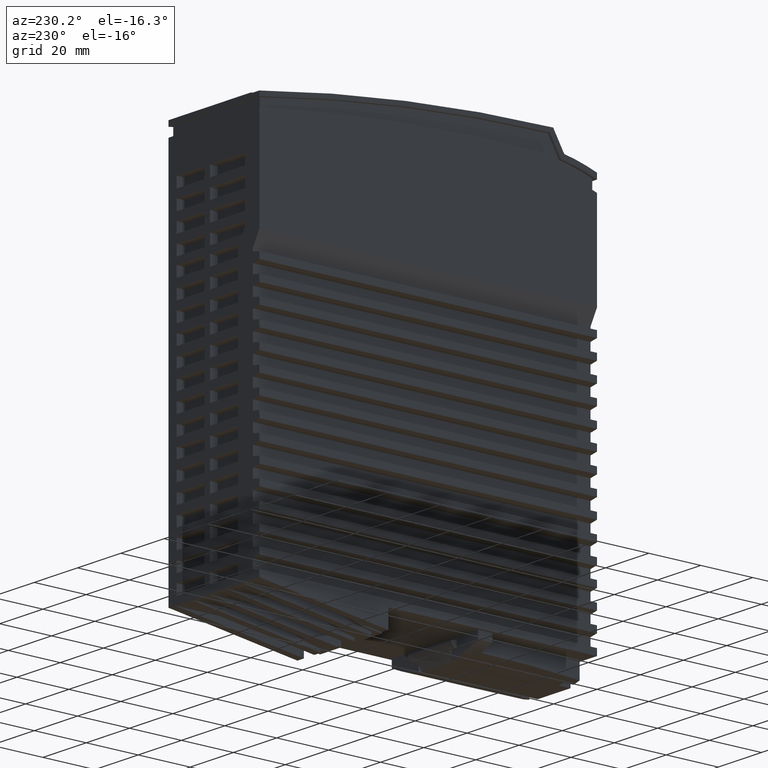
[diagram: clean part render]
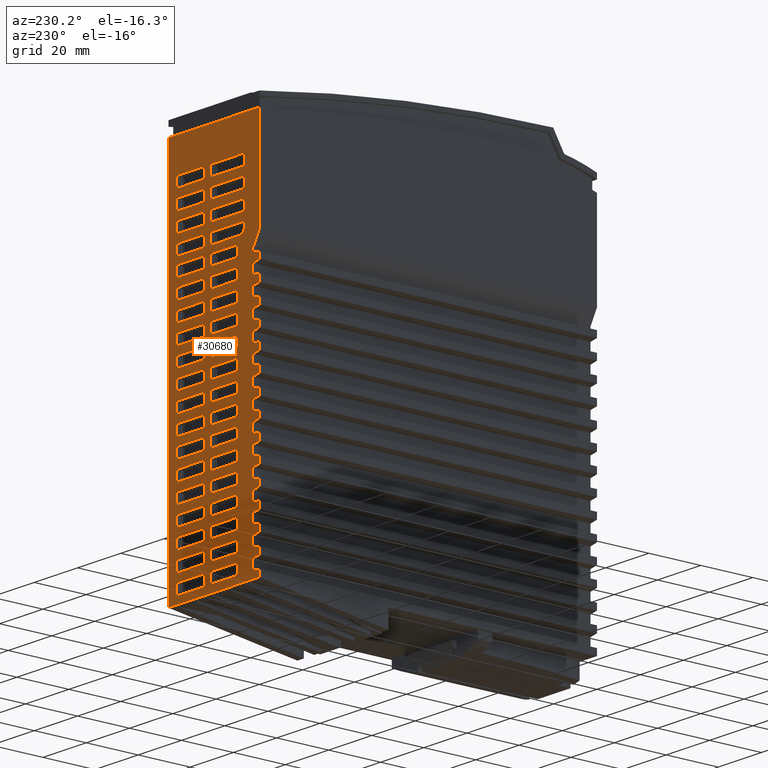
[diagram: same view with one face highlighted and labeled with its STEP entity id]
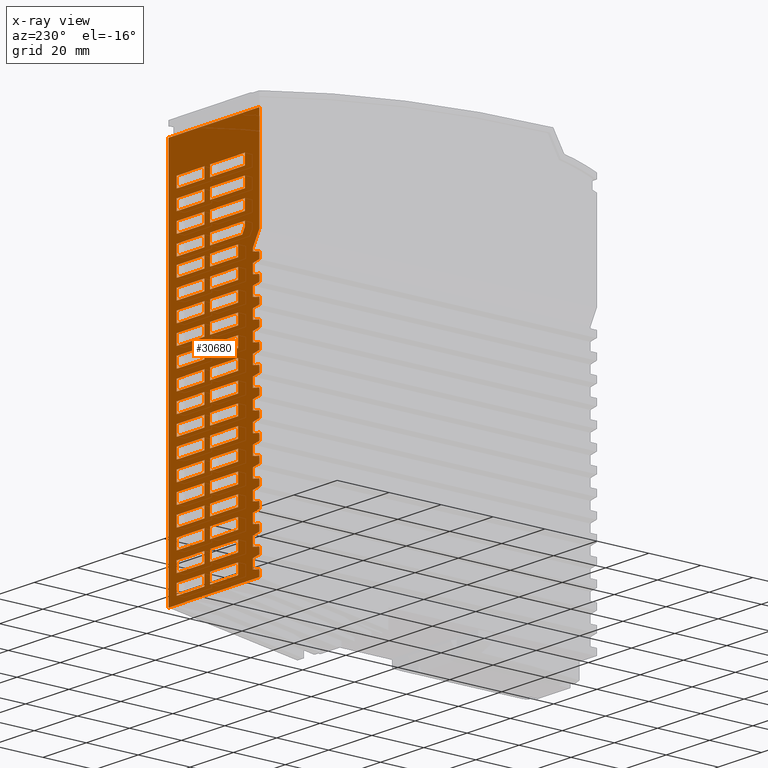
[diagram: x-ray of the same camera — body ghosted, the highlighted face saturated]
A machine part, auxiliary view. The second image highlights one B-rep face of the part: STEP entity #30680.
The next image is the same camera in x-ray: the body ghosted, the highlighted face saturated — about 0% of this face is hidden behind the body in this view.
In plain terms, the highlighted planar face has unit normal (0, -1, -0).
Its self-contained STEP definition (entity closure, byte-faithful):
#540=CARTESIAN_POINT('',(144.853503496781,130.,-50.5));
#550=VERTEX_POINT('',#540);
#580=CARTESIAN_POINT('',(128.90472881771,130.,-50.5));
#590=DIRECTION('',(-1.,0.,0.));
#600=VECTOR('',#590,1.);
#610=LINE('',#580,#600);
#620=CARTESIAN_POINT('',(0.,130.,-50.5));
#630=VERTEX_POINT('',#620);
#640=EDGE_CURVE('',#550,#630,#610,.T.);
#860=CARTESIAN_POINT('',(102.1961524227,130.,-11.5));
#870=VERTEX_POINT('',#860);
#1020=CARTESIAN_POINT('',(101.,130.,-11.5));
#1030=VERTEX_POINT('',#1020);
#1060=CARTESIAN_POINT('',(128.90472881771,130.,-11.5));
#1070=DIRECTION('',(1.,0.,0.));
#1080=VECTOR('',#1070,1.);
#1090=LINE('',#1060,#1080);
#1100=EDGE_CURVE('',#1030,#870,#1090,.T.);
#5000=CARTESIAN_POINT('',(0.,130.,-31.9));
#5010=VERTEX_POINT('',#5000);
#5040=CARTESIAN_POINT('',(0.,130.,4.5));
#5050=DIRECTION('',(0.,0.,1.));
#5060=VECTOR('',#5050,1.);
#5070=LINE('',#5040,#5060);
#5080=CARTESIAN_POINT('',(0.,130.,-27.1));
#5090=VERTEX_POINT('',#5080);
#5100=EDGE_CURVE('',#5010,#5090,#5070,.T.);
#7050=CARTESIAN_POINT('',(0.,129.999999999995,-8.5));
#7060=VERTEX_POINT('',#7050);
#7230=CARTESIAN_POINT('',(0.,130.,-11.5));
#7240=VERTEX_POINT('',#7230);
#7270=CARTESIAN_POINT('',(7.67386154620908E-13,130.,4.5));
#7280=DIRECTION('',(0.,0.,1.));
#7290=VECTOR('',#7280,1.);
#7300=LINE('',#7270,#7290);
#7310=EDGE_CURVE('',#7240,#7060,#7300,.T.);
#8220=CARTESIAN_POINT('',(7.67386154620908E-13,130.,4.5));
#8230=DIRECTION('',(0.,0.,1.));
#8240=VECTOR('',#8230,1.);
#8250=LINE('',#8220,#8240);
#8260=CARTESIAN_POINT('',(7.67386154620908E-13,130.,-34.9));
#8270=VERTEX_POINT('',#8260);
#8280=EDGE_CURVE('',#8270,#5010,#8250,.T.);
#9470=CARTESIAN_POINT('',(7.67386154620908E-13,130.,4.5));
#9480=DIRECTION('',(0.,0.,1.));
#9490=VECTOR('',#9480,1.);
#9500=LINE('',#9470,#9490);
#9510=CARTESIAN_POINT('',(7.67386154620908E-13,130.,-47.5));
#9520=VERTEX_POINT('',#9510);
#9530=EDGE_CURVE('',#630,#9520,#9500,.T.);
#9680=CARTESIAN_POINT('',(7.67386154620908E-13,130.,-39.7));
#9690=VERTEX_POINT('',#9680);
#9860=CARTESIAN_POINT('',(0.,130.,-42.7));
#9870=VERTEX_POINT('',#9860);
#9900=CARTESIAN_POINT('',(7.67386154620908E-13,130.,4.5));
#9910=DIRECTION('',(0.,0.,1.));
#9920=VECTOR('',#9910,1.);
#9930=LINE('',#9900,#9920);
#9940=EDGE_CURVE('',#9870,#9690,#9930,.T.);
#10210=CARTESIAN_POINT('',(0.,130.,4.5));
#10220=DIRECTION('',(0.,0.,1.));
#10230=VECTOR('',#10220,1.);
#10240=LINE('',#10210,#10230);
#10250=EDGE_CURVE('',#9690,#8270,#10240,.T.);
#12270=CARTESIAN_POINT('',(0.,130.,4.5));
#12280=DIRECTION('',(0.,0.,1.));
#12290=VECTOR('',#12280,1.);
#12300=LINE('',#12270,#12290);
#12310=EDGE_CURVE('',#9520,#9870,#12300,.T.);
#13100=CARTESIAN_POINT('',(3.,130.,-63.5));
#13110=DIRECTION('',(-0.,-1.,-0.));
#13120=DIRECTION('',(-1.,0.,0.));
#13130=AXIS2_PLACEMENT_3D('',#13100,#13110,#13120);
#13140=PLANE('',#13130);
#13150=CARTESIAN_POINT('',(79.805237398407,130.,4.5));
#13160=DIRECTION('',(0.,0.,1.));
#13170=VECTOR('',#13160,1.);
#13180=LINE('',#13150,#13170);
#13190=CARTESIAN_POINT('',(79.805237398407,130.,-46.69476260159));
#13200=VERTEX_POINT('',#13190);
#13210=CARTESIAN_POINT('',(79.805237398407,130.,-33.90523739841));
#13220=VERTEX_POINT('',#13210);
#13230=EDGE_CURVE('',#13200,#13220,#13180,.T.);
#13240=ORIENTED_EDGE('',*,*,#13230,.F.);
#13250=CARTESIAN_POINT('',(128.90472881771,130.,-33.90523739841));
#13260=DIRECTION('',(1.,0.,0.));
#13270=VECTOR('',#13260,1.);
#13280=LINE('',#13250,#13270);
#13290=CARTESIAN_POINT('',(83.75476260159,130.,-33.90523739841));
#13300=VERTEX_POINT('',#13290);
#13310=EDGE_CURVE('',#13220,#13300,#13280,.T.);
#13320=ORIENTED_EDGE('',*,*,#13310,.F.);
#13330=CARTESIAN_POINT('',(83.75476260159,130.,4.5));
#13340=DIRECTION('',(0.,0.,-1.));
#13350=VECTOR('',#13340,1.);
#13360=LINE('',#13330,#13350);
#13370=CARTESIAN_POINT('',(83.75476260159,130.,-46.69476260159));
#13380=VERTEX_POINT('',#13370);
#13390=EDGE_CURVE('',#13300,#13380,#13360,.T.);
#13400=ORIENTED_EDGE('',*,*,#13390,.F.);
#13410=CARTESIAN_POINT('',(128.90472881771,130.,-46.69476260159));
#13420=DIRECTION('',(-1.,0.,0.));
#13430=VECTOR('',#13420,1.);
#13440=LINE('',#13410,#13430);
#13450=EDGE_CURVE('',#13380,#13200,#13440,.T.);
#13460=ORIENTED_EDGE('',*,*,#13450,.F.);
#13470=EDGE_LOOP('',(#13460,#13400,#13320,#13240));
#13480=FACE_BOUND('',#13470,.T.);
#13490=CARTESIAN_POINT('',(128.90472881771,130.,-33.90523739841));
#13500=DIRECTION('',(1.,0.,0.));
#13510=VECTOR('',#13500,1.);
#13520=LINE('',#13490,#13510);
#13530=CARTESIAN_POINT('',(16.805237398407,130.,-33.90523739841));
#13540=VERTEX_POINT('',#13530);
#13550=CARTESIAN_POINT('',(20.75476260159,130.,-33.90523739841));
#13560=VERTEX_POINT('',#13550);
#13570=EDGE_CURVE('',#13540,#13560,#13520,.T.);
#13580=ORIENTED_EDGE('',*,*,#13570,.F.);
#13590=CARTESIAN_POINT('',(20.75476260159,130.,4.5));
#13600=DIRECTION('',(0.,0.,-1.));
#13610=VECTOR('',#13600,1.);
#13620=LINE('',#13590,#13610);
#13630=CARTESIAN_POINT('',(20.75476260159,130.,-46.69476260159));
#13640=VERTEX_POINT('',#13630);
#13650=EDGE_CURVE('',#13560,#13640,#13620,.T.);
#13660=ORIENTED_EDGE('',*,*,#13650,.F.);
#13670=CARTESIAN_POINT('',(128.90472881771,130.,-46.69476260159));
#13680=DIRECTION('',(-1.,0.,0.));
#13690=VECTOR('',#13680,1.);
#13700=LINE('',#13670,#13690);
#13710=CARTESIAN_POINT('',(16.805237398407,130.,-46.69476260159));
#13720=VERTEX_POINT('',#13710);
#13730=EDGE_CURVE('',#13640,#13720,#13700,.T.);
#13740=ORIENTED_EDGE('',*,*,#13730,.F.);
#13750=CARTESIAN_POINT('',(16.805237398407,130.,4.5));
#13760=DIRECTION('',(0.,0.,1.));
#13770=VECTOR('',#13760,1.);
#13780=LINE('',#13750,#13770);
#13790=EDGE_CURVE('',#13720,#13540,#13780,.T.);
#13800=ORIENTED_EDGE('',*,*,#13790,.F.);
#13810=EDGE_LOOP('',(#13800,#13740,#13660,#13580));
#13820=FACE_BOUND('',#13810,.T.);
#13830=CARTESIAN_POINT('',(62.75476260159,130.,4.5));
#13840=DIRECTION('',(0.,0.,-1.));
#13850=VECTOR('',#13840,1.);
#13860=LINE('',#13830,#13850);
#13870=CARTESIAN_POINT('',(62.75476260159,130.,-33.90523739841));
#13880=VERTEX_POINT('',#13870);
#13890=CARTESIAN_POINT('',(62.75476260159,130.,-46.69476260159));
#13900=VERTEX_POINT('',#13890);
#13910=EDGE_CURVE('',#13880,#13900,#13860,.T.);
#13920=ORIENTED_EDGE('',*,*,#13910,.F.);
#13930=CARTESIAN_POINT('',(128.90472881771,130.,-46.69476260159));
#13940=DIRECTION('',(-1.,0.,0.));
#13950=VECTOR('',#13940,1.);
#13960=LINE('',#13930,#13950);
#13970=CARTESIAN_POINT('',(58.805237398407,130.,-46.69476260159));
#13980=VERTEX_POINT('',#13970);
#13990=EDGE_CURVE('',#13900,#13980,#13960,.T.);
#14000=ORIENTED_EDGE('',*,*,#13990,.F.);
#14010=CARTESIAN_POINT('',(58.805237398407,130.,4.5));
#14020=DIRECTION('',(0.,0.,1.));
#14030=VECTOR('',#14020,1.);
#14040=LINE('',#14010,#14030);
#14050=CARTESIAN_POINT('',(58.805237398407,130.,-33.90523739841));
#14060=VERTEX_POINT('',#14050);
#14070=EDGE_CURVE('',#13980,#14060,#14040,.T.);
#14080=ORIENTED_EDGE('',*,*,#14070,.F.);
#14090=CARTESIAN_POINT('',(128.90472881771,130.,-33.90523739841));
#14100=DIRECTION('',(1.,0.,0.));
#14110=VECTOR('',#14100,1.);
#14120=LINE('',#14090,#14110);
#14130=EDGE_CURVE('',#14060,#13880,#14120,.T.);
#14140=ORIENTED_EDGE('',*,*,#14130,.F.);
#14150=EDGE_LOOP('',(#14140,#14080,#14000,#13920));
#14160=FACE_BOUND('',#14150,.T.);
#14170=CARTESIAN_POINT('',(128.90472881771,130.,-33.90523739841));
#14180=DIRECTION('',(1.,0.,0.));
#14190=VECTOR('',#14180,1.);
#14200=LINE('',#14170,#14190);
#14210=CARTESIAN_POINT('',(2.805237398407,130.,-33.90523739841));
#14220=VERTEX_POINT('',#14210);
#14230=CARTESIAN_POINT('',(6.75476260159,130.,-33.90523739841));
#14240=VERTEX_POINT('',#14230);
#14250=EDGE_CURVE('',#14220,#14240,#14200,.T.);
#14260=ORIENTED_EDGE('',*,*,#14250,.F.);
#14270=CARTESIAN_POINT('',(6.75476260159,130.,4.5));
#14280=DIRECTION('',(0.,0.,-1.));
#14290=VECTOR('',#14280,1.);
#14300=LINE('',#14270,#14290);
#14310=CARTESIAN_POINT('',(6.75476260159,130.,-46.69476260159));
#14320=VERTEX_POINT('',#14310);
#14330=EDGE_CURVE('',#14240,#14320,#14300,.T.);
#14340=ORIENTED_EDGE('',*,*,#14330,.F.);
#14350=CARTESIAN_POINT('',(128.90472881771,130.,-46.69476260159));
#14360=DIRECTION('',(-1.,0.,0.));
#14370=VECTOR('',#14360,1.);
#14380=LINE('',#14350,#14370);
#14390=CARTESIAN_POINT('',(2.805237398407,130.,-46.69476260159));
#14400=VERTEX_POINT('',#14390);
#14410=EDGE_CURVE('',#14320,#14400,#14380,.T.);
#14420=ORIENTED_EDGE('',*,*,#14410,.F.);
#14430=CARTESIAN_POINT('',(2.805237398407,130.,4.5));
#14440=DIRECTION('',(0.,0.,1.));
#14450=VECTOR('',#14440,1.);
#14460=LINE('',#14430,#14450);
#14470=EDGE_CURVE('',#14400,#14220,#14460,.T.);
#14480=ORIENTED_EDGE('',*,*,#14470,.F.);
#14490=EDGE_LOOP('',(#14480,#14420,#14340,#14260));
#14500=FACE_BOUND('',#14490,.T.);
#14510=CARTESIAN_POINT('',(128.90472881771,130.,-33.90523739841));
#14520=DIRECTION('',(1.,0.,0.));
#14530=VECTOR('',#14520,1.);
#14540=LINE('',#14510,#14530);
#14550=CARTESIAN_POINT('',(65.805237398407,130.,-33.90523739841));
#14560=VERTEX_POINT('',#14550);
#14570=CARTESIAN_POINT('',(69.75476260159,130.,-33.90523739841));
#14580=VERTEX_POINT('',#14570);
#14590=EDGE_CURVE('',#14560,#14580,#14540,.T.);
#14600=ORIENTED_EDGE('',*,*,#14590,.F.);
#14610=CARTESIAN_POINT('',(69.75476260159,130.,4.5));
#14620=DIRECTION('',(0.,0.,-1.));
#14630=VECTOR('',#14620,1.);
#14640=LINE('',#14610,#14630);
#14650=CARTESIAN_POINT('',(69.75476260159,130.,-46.69476260159));
#14660=VERTEX_POINT('',#14650);
#14670=EDGE_CURVE('',#14580,#14660,#14640,.T.);
#14680=ORIENTED_EDGE('',*,*,#14670,.F.);
#14690=CARTESIAN_POINT('',(128.90472881771,130.,-46.69476260159));
#14700=DIRECTION('',(-1.,0.,0.));
#14710=VECTOR('',#14700,1.);
#14720=LINE('',#14690,#14710);
#14730=CARTESIAN_POINT('',(65.805237398407,130.,-46.69476260159));
#14740=VERTEX_POINT('',#14730);
#14750=EDGE_CURVE('',#14660,#14740,#14720,.T.);
#14760=ORIENTED_EDGE('',*,*,#14750,.F.);
#14770=CARTESIAN_POINT('',(65.805237398407,130.,4.5));
#14780=DIRECTION('',(0.,0.,1.));
#14790=VECTOR('',#14780,1.);
#14800=LINE('',#14770,#14790);
#14810=EDGE_CURVE('',#14740,#14560,#14800,.T.);
#14820=ORIENTED_EDGE('',*,*,#14810,.F.);
#14830=EDGE_LOOP('',(#14820,#14760,#14680,#14600));
#14840=FACE_BOUND('',#14830,.T.);
#14850=CARTESIAN_POINT('',(128.90472881771,130.,-33.90523739841));
#14860=DIRECTION('',(1.,0.,0.));
#14870=VECTOR('',#14860,1.);
#14880=LINE('',#14850,#14870);
#14890=CARTESIAN_POINT('',(37.805237398407,130.,-33.90523739841));
#14900=VERTEX_POINT('',#14890);
#14910=CARTESIAN_POINT('',(41.75476260159,130.,-33.90523739841));
#14920=VERTEX_POINT('',#14910);
#14930=EDGE_CURVE('',#14900,#14920,#14880,.T.);
#14940=ORIENTED_EDGE('',*,*,#14930,.F.);
#14950=CARTESIAN_POINT('',(41.75476260159,130.,4.5));
#14960=DIRECTION('',(0.,0.,-1.));
#14970=VECTOR('',#14960,1.);
#14980=LINE('',#14950,#14970);
#14990=CARTESIAN_POINT('',(41.75476260159,130.,-46.69476260159));
#15000=VERTEX_POINT('',#14990);
#15010=EDGE_CURVE('',#14920,#15000,#14980,.T.);
#15020=ORIENTED_EDGE('',*,*,#15010,.F.);
#15030=CARTESIAN_POINT('',(128.90472881771,130.,-46.69476260159));
#15040=DIRECTION('',(-1.,0.,0.));
#15050=VECTOR('',#15040,1.);
#15060=LINE('',#15030,#15050);
#15070=CARTESIAN_POINT('',(37.805237398407,130.,-46.69476260159));
#15080=VERTEX_POINT('',#15070);
#15090=EDGE_CURVE('',#15000,#15080,#15060,.T.);
#15100=ORIENTED_EDGE('',*,*,#15090,.F.);
#15110=CARTESIAN_POINT('',(37.805237398407,130.,4.5));
#15120=DIRECTION('',(0.,0.,1.));
#15130=VECTOR('',#15120,1.);
#15140=LINE('',#15110,#15130);
#15150=EDGE_CURVE('',#15080,#14900,#15140,.T.);
#15160=ORIENTED_EDGE('',*,*,#15150,.F.);
#15170=EDGE_LOOP('',(#15160,#15100,#15020,#14940));
#15180=FACE_BOUND('',#15170,.T.);
#15190=CARTESIAN_POINT('',(128.90472881771,130.,-33.90523739841));
#15200=DIRECTION('',(1.,0.,0.));
#15210=VECTOR('',#15200,1.);
#15220=LINE('',#15190,#15210);
#15230=CARTESIAN_POINT('',(86.805237398407,130.,-33.90523739841));
#15240=VERTEX_POINT('',#15230);
#15250=CARTESIAN_POINT('',(90.75476260159,130.,-33.90523739841));
#15260=VERTEX_POINT('',#15250);
#15270=EDGE_CURVE('',#15240,#15260,#15220,.T.);
#15280=ORIENTED_EDGE('',*,*,#15270,.F.);
#15290=CARTESIAN_POINT('',(90.75476260159,130.,4.5));
#15300=DIRECTION('',(0.,0.,-1.));
#15310=VECTOR('',#15300,1.);
#15320=LINE('',#15290,#15310);
#15330=CARTESIAN_POINT('',(90.75476260159,130.,-46.69476260159));
#15340=VERTEX_POINT('',#15330);
#15350=EDGE_CURVE('',#15260,#15340,#15320,.T.);
#15360=ORIENTED_EDGE('',*,*,#15350,.F.);
#15370=CARTESIAN_POINT('',(128.90472881771,130.,-46.69476260159));
#15380=DIRECTION('',(-1.,0.,0.));
#15390=VECTOR('',#15380,1.);
#15400=LINE('',#15370,#15390);
#15410=CARTESIAN_POINT('',(86.805237398407,130.,-46.69476260159));
#15420=VERTEX_POINT('',#15410);
#15430=EDGE_CURVE('',#15340,#15420,#15400,.T.);
#15440=ORIENTED_EDGE('',*,*,#15430,.F.);
#15450=CARTESIAN_POINT('',(86.805237398407,130.,4.5));
#15460=DIRECTION('',(0.,0.,1.));
#15470=VECTOR('',#15460,1.);
#15480=LINE('',#15450,#15470);
#15490=EDGE_CURVE('',#15420,#15240,#15480,.T.);
#15500=ORIENTED_EDGE('',*,*,#15490,.F.);
#15510=EDGE_LOOP('',(#15500,#15440,#15360,#15280));
#15520=FACE_BOUND('',#15510,.T.);
#15530=CARTESIAN_POINT('',(9.805237398407,130.,4.5));
#15540=DIRECTION('',(0.,0.,1.));
#15550=VECTOR('',#15540,1.);
#15560=LINE('',#15530,#15550);
#15570=CARTESIAN_POINT('',(9.805237398407,130.,-46.69476260159));
#15580=VERTEX_POINT('',#15570);
#15590=CARTESIAN_POINT('',(9.805237398407,130.,-33.90523739841));
#15600=VERTEX_POINT('',#15590);
#15610=EDGE_CURVE('',#15580,#15600,#15560,.T.);
#15620=ORIENTED_EDGE('',*,*,#15610,.F.);
#15630=CARTESIAN_POINT('',(128.90472881771,130.,-33.90523739841));
#15640=DIRECTION('',(1.,0.,0.));
#15650=VECTOR('',#15640,1.);
#15660=LINE('',#15630,#15650);
#15670=CARTESIAN_POINT('',(13.75476260159,130.,-33.90523739841));
#15680=VERTEX_POINT('',#15670);
#15690=EDGE_CURVE('',#15600,#15680,#15660,.T.);
#15700=ORIENTED_EDGE('',*,*,#15690,.F.);
#15710=CARTESIAN_POINT('',(13.75476260159,130.,4.5));
#15720=DIRECTION('',(0.,0.,-1.));
#15730=VECTOR('',#15720,1.);
#15740=LINE('',#15710,#15730);
#15750=CARTESIAN_POINT('',(13.75476260159,130.,-46.69476260159));
#15760=VERTEX_POINT('',#15750);
#15770=EDGE_CURVE('',#15680,#15760,#15740,.T.);
#15780=ORIENTED_EDGE('',*,*,#15770,.F.);
#15790=CARTESIAN_POINT('',(128.90472881771,130.,-46.69476260159));
#15800=DIRECTION('',(-1.,0.,0.));
#15810=VECTOR('',#15800,1.);
#15820=LINE('',#15790,#15810);
#15830=EDGE_CURVE('',#15760,#15580,#15820,.T.);
#15840=ORIENTED_EDGE('',*,*,#15830,.F.);
#15850=EDGE_LOOP('',(#15840,#15780,#15700,#15620));
#15860=FACE_BOUND('',#15850,.T.);
#15870=CARTESIAN_POINT('',(128.90472881771,130.,-31.29476260159));
#15880=DIRECTION('',(-1.,0.,0.));
#15890=VECTOR('',#15880,1.);
#15900=LINE('',#15870,#15890);
#15910=CARTESIAN_POINT('',(6.75476260159,130.,-31.29476260159));
#15920=VERTEX_POINT('',#15910);
#15930=CARTESIAN_POINT('',(2.805237398407,130.,-31.29476260159));
#15940=VERTEX_POINT('',#15930);
#15950=EDGE_CURVE('',#15920,#15940,#15900,.T.);
#15960=ORIENTED_EDGE('',*,*,#15950,.F.);
#15970=CARTESIAN_POINT('',(2.805237398407,130.,4.5));
#15980=DIRECTION('',(0.,0.,1.));
#15990=VECTOR('',#15980,1.);
#16000=LINE('',#15970,#15990);
#16010=CARTESIAN_POINT('',(2.805237398407,130.,-18.305237398407));
#16020=VERTEX_POINT('',#16010);
#16030=EDGE_CURVE('',#15940,#16020,#16000,.T.);
#16040=ORIENTED_EDGE('',*,*,#16030,.F.);
#16050=CARTESIAN_POINT('',(128.90472881771,130.,-18.305237398407));
#16060=DIRECTION('',(1.,0.,0.));
#16070=VECTOR('',#16060,1.);
#16080=LINE('',#16050,#16070);
#16090=CARTESIAN_POINT('',(6.75476260159,130.,-18.305237398407));
#16100=VERTEX_POINT('',#16090);
#16110=EDGE_CURVE('',#16020,#16100,#16080,.T.);
#16120=ORIENTED_EDGE('',*,*,#16110,.F.);
#16130=CARTESIAN_POINT('',(6.75476260159,130.,4.5));
#16140=DIRECTION('',(0.,0.,-1.));
#16150=VECTOR('',#16140,1.);
#16160=LINE('',#16130,#16150);
#16170=EDGE_CURVE('',#16100,#15920,#16160,.T.);
#16180=ORIENTED_EDGE('',*,*,#16170,.F.);
#16190=EDGE_LOOP('',(#16180,#16120,#16040,#15960));
#16200=FACE_BOUND('',#16190,.T.);
#16210=CARTESIAN_POINT('',(128.90472881771,130.,-33.90523739841));
#16220=DIRECTION('',(1.,0.,0.));
#16230=VECTOR('',#16220,1.);
#16240=LINE('',#16210,#16230);
#16250=CARTESIAN_POINT('',(72.805237398407,130.,-33.90523739841));
#16260=VERTEX_POINT('',#16250);
#16270=CARTESIAN_POINT('',(76.75476260159,130.,-33.90523739841));
#16280=VERTEX_POINT('',#16270);
#16290=EDGE_CURVE('',#16260,#16280,#16240,.T.);
#16300=ORIENTED_EDGE('',*,*,#16290,.F.);
#16310=CARTESIAN_POINT('',(76.75476260159,130.,4.5));
#16320=DIRECTION('',(0.,0.,-1.));
#16330=VECTOR('',#16320,1.);
#16340=LINE('',#16310,#16330);
#16350=CARTESIAN_POINT('',(76.75476260159,130.,-46.69476260159));
#16360=VERTEX_POINT('',#16350);
#16370=EDGE_CURVE('',#16280,#16360,#16340,.T.);
#16380=ORIENTED_EDGE('',*,*,#16370,.F.);
#16390=CARTESIAN_POINT('',(128.90472881771,130.,-46.69476260159));
#16400=DIRECTION('',(-1.,0.,0.));
#16410=VECTOR('',#16400,1.);
#16420=LINE('',#16390,#16410);
#16430=CARTESIAN_POINT('',(72.805237398407,130.,-46.69476260159));
#16440=VERTEX_POINT('',#16430);
#16450=EDGE_CURVE('',#16360,#16440,#16420,.T.);
#16460=ORIENTED_EDGE('',*,*,#16450,.F.);
#16470=CARTESIAN_POINT('',(72.805237398407,130.,4.5));
#16480=DIRECTION('',(0.,0.,1.));
#16490=VECTOR('',#16480,1.);
#16500=LINE('',#16470,#16490);
#16510=EDGE_CURVE('',#16440,#16260,#16500,.T.);
#16520=ORIENTED_EDGE('',*,*,#16510,.F.);
#16530=EDGE_LOOP('',(#16520,#16460,#16380,#16300));
#16540=FACE_BOUND('',#16530,.T.);
#16550=CARTESIAN_POINT('',(93.805237398407,130.,4.5));
#16560=DIRECTION('',(0.,0.,1.));
#16570=VECTOR('',#16560,1.);
#16580=LINE('',#16550,#16570);
#16590=CARTESIAN_POINT('',(93.805237398407,130.,-46.69476260159));
#16600=VERTEX_POINT('',#16590);
#16610=CARTESIAN_POINT('',(93.805237398407,130.,-33.90523739841));
#16620=VERTEX_POINT('',#16610);
#16630=EDGE_CURVE('',#16600,#16620,#16580,.T.);
#16640=ORIENTED_EDGE('',*,*,#16630,.F.);
#16650=CARTESIAN_POINT('',(128.90472881771,130.,-33.90523739841));
#16660=DIRECTION('',(1.,0.,0.));
#16670=VECTOR('',#16660,1.);
#16680=LINE('',#16650,#16670);
#16690=CARTESIAN_POINT('',(97.75476260159,130.,-33.90523739841));
#16700=VERTEX_POINT('',#16690);
#16710=EDGE_CURVE('',#16620,#16700,#16680,.T.);
#16720=ORIENTED_EDGE('',*,*,#16710,.F.);
#16730=CARTESIAN_POINT('',(97.75476260159,130.,4.5));
#16740=DIRECTION('',(0.,0.,-1.));
#16750=VECTOR('',#16740,1.);
#16760=LINE('',#16730,#16750);
#16770=CARTESIAN_POINT('',(97.75476260159,130.,-46.69476260159));
#16780=VERTEX_POINT('',#16770);
#16790=EDGE_CURVE('',#16700,#16780,#16760,.T.);
#16800=ORIENTED_EDGE('',*,*,#16790,.F.);
#16810=CARTESIAN_POINT('',(128.90472881771,130.,-46.69476260159));
#16820=DIRECTION('',(-1.,0.,0.));
#16830=VECTOR('',#16820,1.);
#16840=LINE('',#16810,#16830);
#16850=EDGE_CURVE('',#16780,#16600,#16840,.T.);
#16860=ORIENTED_EDGE('',*,*,#16850,.F.);
#16870=EDGE_LOOP('',(#16860,#16800,#16720,#16640));
#16880=FACE_BOUND('',#16870,.T.);
#16890=CARTESIAN_POINT('',(128.90472881771,130.,-46.69476260159));
#16900=DIRECTION('',(-1.,0.,0.));
#16910=VECTOR('',#16900,1.);
#16920=LINE('',#16890,#16910);
#16930=CARTESIAN_POINT('',(55.75476260159,130.,-46.69476260159));
#16940=VERTEX_POINT('',#16930);
#16950=CARTESIAN_POINT('',(51.805237398407,130.,-46.69476260159));
#16960=VERTEX_POINT('',#16950);
#16970=EDGE_CURVE('',#16940,#16960,#16920,.T.);
#16980=ORIENTED_EDGE('',*,*,#16970,.F.);
#16990=CARTESIAN_POINT('',(51.805237398407,130.,4.5));
#17000=DIRECTION('',(0.,0.,1.));
#17010=VECTOR('',#17000,1.);
#17020=LINE('',#16990,#17010);
#17030=CARTESIAN_POINT('',(51.805237398407,130.,-33.90523739841));
#17040=VERTEX_POINT('',#17030);
#17050=EDGE_CURVE('',#16960,#17040,#17020,.T.);
#17060=ORIENTED_EDGE('',*,*,#17050,.F.);
#17070=CARTESIAN_POINT('',(128.90472881771,130.,-33.90523739841));
#17080=DIRECTION('',(1.,0.,0.));
#17090=VECTOR('',#17080,1.);
#17100=LINE('',#17070,#17090);
#17110=CARTESIAN_POINT('',(55.75476260159,130.,-33.90523739841));
#17120=VERTEX_POINT('',#17110);
#17130=EDGE_CURVE('',#17040,#17120,#17100,.T.);
#17140=ORIENTED_EDGE('',*,*,#17130,.F.);
#17150=CARTESIAN_POINT('',(55.75476260159,130.,4.5));
#17160=DIRECTION('',(0.,0.,-1.));
#17170=VECTOR('',#17160,1.);
#17180=LINE('',#17150,#17170);
#17190=EDGE_CURVE('',#17120,#16940,#17180,.T.);
#17200=ORIENTED_EDGE('',*,*,#17190,.F.);
#17210=EDGE_LOOP('',(#17200,#17140,#17060,#16980));
#17220=FACE_BOUND('',#17210,.T.);
#17230=CARTESIAN_POINT('',(128.90472881771,130.,-31.29476260159));
#17240=DIRECTION('',(-1.,0.,0.));
#17250=VECTOR('',#17240,1.);
#17260=LINE('',#17230,#17250);
#17270=CARTESIAN_POINT('',(13.75476260159,130.,-31.29476260159));
#17280=VERTEX_POINT('',#17270);
#17290=CARTESIAN_POINT('',(9.805237398407,130.,-31.29476260159));
#17300=VERTEX_POINT('',#17290);
#17310=EDGE_CURVE('',#17280,#17300,#17260,.T.);
#17320=ORIENTED_EDGE('',*,*,#17310,.F.);
#17330=CARTESIAN_POINT('',(9.805237398407,130.,4.5));
#17340=DIRECTION('',(0.,0.,1.));
#17350=VECTOR('',#17340,1.);
#17360=LINE('',#17330,#17350);
#17370=CARTESIAN_POINT('',(9.805237398407,130.,-18.305237398407));
#17380=VERTEX_POINT('',#17370);
#17390=EDGE_CURVE('',#17300,#17380,#17360,.T.);
#17400=ORIENTED_EDGE('',*,*,#17390,.F.);
#17410=CARTESIAN_POINT('',(128.90472881771,130.,-18.305237398407));
#17420=DIRECTION('',(1.,0.,0.));
#17430=VECTOR('',#17420,1.);
#17440=LINE('',#17410,#17430);
#17450=CARTESIAN_POINT('',(13.75476260159,130.,-18.305237398407));
#17460=VERTEX_POINT('',#17450);
#17470=EDGE_CURVE('',#17380,#17460,#17440,.T.);
#17480=ORIENTED_EDGE('',*,*,#17470,.F.);
#17490=CARTESIAN_POINT('',(13.75476260159,130.,4.5));
#17500=DIRECTION('',(0.,0.,-1.));
#17510=VECTOR('',#17500,1.);
#17520=LINE('',#17490,#17510);
#17530=EDGE_CURVE('',#17460,#17280,#17520,.T.);
#17540=ORIENTED_EDGE('',*,*,#17530,.F.);
#17550=EDGE_LOOP('',(#17540,#17480,#17400,#17320));
#17560=FACE_BOUND('',#17550,.T.);
#17570=CARTESIAN_POINT('',(27.75476260159,130.,4.5));
#17580=DIRECTION('',(0.,0.,-1.));
#17590=VECTOR('',#17580,1.);
#17600=LINE('',#17570,#17590);
#17610=CARTESIAN_POINT('',(27.75476260159,130.,-33.90523739841));
#17620=VERTEX_POINT('',#17610);
#17630=CARTESIAN_POINT('',(27.75476260159,130.,-46.69476260159));
#17640=VERTEX_POINT('',#17630);
#17650=EDGE_CURVE('',#17620,#17640,#17600,.T.);
#17660=ORIENTED_EDGE('',*,*,#17650,.F.);
#17670=CARTESIAN_POINT('',(128.90472881771,130.,-46.69476260159));
#17680=DIRECTION('',(-1.,0.,0.));
#17690=VECTOR('',#17680,1.);
#17700=LINE('',#17670,#17690);
#17710=CARTESIAN_POINT('',(23.805237398407,130.,-46.69476260159));
#17720=VERTEX_POINT('',#17710);
#17730=EDGE_CURVE('',#17640,#17720,#17700,.T.);
#17740=ORIENTED_EDGE('',*,*,#17730,.F.);
#17750=CARTESIAN_POINT('',(23.805237398407,130.,4.5));
#17760=DIRECTION('',(0.,0.,1.));
#17770=VECTOR('',#17760,1.);
#17780=LINE('',#17750,#17770);
#17790=CARTESIAN_POINT('',(23.805237398407,130.,-33.90523739841));
#17800=VERTEX_POINT('',#17790);
#17810=EDGE_CURVE('',#17720,#17800,#17780,.T.);
#17820=ORIENTED_EDGE('',*,*,#17810,.F.);
#17830=CARTESIAN_POINT('',(128.90472881771,130.,-33.90523739841));
#17840=DIRECTION('',(1.,0.,0.));
#17850=VECTOR('',#17840,1.);
#17860=LINE('',#17830,#17850);
#17870=EDGE_CURVE('',#17800,#17620,#17860,.T.);
#17880=ORIENTED_EDGE('',*,*,#17870,.F.);
#17890=EDGE_LOOP('',(#17880,#17820,#17740,#17660));
#17900=FACE_BOUND('',#17890,.T.);
#17910=CARTESIAN_POINT('',(128.90472881771,130.,-31.29476260159));
#17920=DIRECTION('',(-1.,0.,0.));
#17930=VECTOR('',#17920,1.);
#17940=LINE('',#17910,#17930);
#17950=CARTESIAN_POINT('',(132.3147626016,130.,-31.29476260159));
#17960=VERTEX_POINT('',#17950);
#17970=CARTESIAN_POINT('',(128.3652373984,130.,-31.29476260159));
#17980=VERTEX_POINT('',#17970);
#17990=EDGE_CURVE('',#17960,#17980,#17940,.T.);
#18000=ORIENTED_EDGE('',*,*,#17990,.F.);
#18010=CARTESIAN_POINT('',(128.3652373984,130.,4.5));
#18020=DIRECTION('',(0.,0.,1.));
#18030=VECTOR('',#18020,1.);
#18040=LINE('',#18010,#18030);
#18050=CARTESIAN_POINT('',(128.3652373984,130.,-15.205237398407));
#18060=VERTEX_POINT('',#18050);
#18070=EDGE_CURVE('',#17980,#18060,#18040,.T.);
#18080=ORIENTED_EDGE('',*,*,#18070,.F.);
#18090=CARTESIAN_POINT('',(128.90472881771,130.,-15.205237398407));
#18100=DIRECTION('',(1.,0.,0.));
#18110=VECTOR('',#18100,1.);
#18120=LINE('',#18090,#18110);
#18130=CARTESIAN_POINT('',(132.3147626016,130.,-15.205237398407));
#18140=VERTEX_POINT('',#18130);
#18150=EDGE_CURVE('',#18060,#18140,#18120,.T.);
#18160=ORIENTED_EDGE('',*,*,#18150,.F.);
#18170=CARTESIAN_POINT('',(132.3147626016,130.,4.5));
#18180=DIRECTION('',(0.,0.,-1.));
#18190=VECTOR('',#18180,1.);
#18200=LINE('',#18170,#18190);
#18210=EDGE_CURVE('',#18140,#17960,#18200,.T.);
#18220=ORIENTED_EDGE('',*,*,#18210,.F.);
#18230=EDGE_LOOP('',(#18220,#18160,#18080,#18000));
#18240=FACE_BOUND('',#18230,.T.);
#18250=CARTESIAN_POINT('',(128.90472881771,130.,-31.29476260159));
#18260=DIRECTION('',(-1.,0.,0.));
#18270=VECTOR('',#18260,1.);
#18280=LINE('',#18250,#18270);
#18290=CARTESIAN_POINT('',(125.3147626016,130.,-31.29476260159));
#18300=VERTEX_POINT('',#18290);
#18310=CARTESIAN_POINT('',(121.3652373984,130.,-31.29476260159));
#18320=VERTEX_POINT('',#18310);
#18330=EDGE_CURVE('',#18300,#18320,#18280,.T.);
#18340=ORIENTED_EDGE('',*,*,#18330,.F.);
#18350=CARTESIAN_POINT('',(121.3652373984,130.,4.5));
#18360=DIRECTION('',(0.,0.,1.));
#18370=VECTOR('',#18360,1.);
#18380=LINE('',#18350,#18370);
#18390=CARTESIAN_POINT('',(121.3652373984,130.,-15.205237398407));
#18400=VERTEX_POINT('',#18390);
#18410=EDGE_CURVE('',#18320,#18400,#18380,.T.);
#18420=ORIENTED_EDGE('',*,*,#18410,.F.);
#18430=CARTESIAN_POINT('',(128.90472881771,130.,-15.205237398407));
#18440=DIRECTION('',(1.,0.,0.));
#18450=VECTOR('',#18440,1.);
#18460=LINE('',#18430,#18450);
#18470=CARTESIAN_POINT('',(125.3147626016,130.,-15.205237398407));
#18480=VERTEX_POINT('',#18470);
#18490=EDGE_CURVE('',#18400,#18480,#18460,.T.);
#18500=ORIENTED_EDGE('',*,*,#18490,.F.);
#18510=CARTESIAN_POINT('',(125.3147626016,130.,4.5));
#18520=DIRECTION('',(0.,0.,-1.));
#18530=VECTOR('',#18520,1.);
#18540=LINE('',#18510,#18530);
#18550=EDGE_CURVE('',#18480,#18300,#18540,.T.);
#18560=ORIENTED_EDGE('',*,*,#18550,.F.);
#18570=EDGE_LOOP('',(#18560,#18500,#18420,#18340));
#18580=FACE_BOUND('',#18570,.T.);
#18590=CARTESIAN_POINT('',(128.90472881771,130.,-31.29476260159));
#18600=DIRECTION('',(-1.,0.,0.));
#18610=VECTOR('',#18600,1.);
#18620=LINE('',#18590,#18610);
#18630=CARTESIAN_POINT('',(118.3147626016,130.,-31.29476260159));
#18640=VERTEX_POINT('',#18630);
#18650=CARTESIAN_POINT('',(114.3652373984,130.,-31.29476260159));
#18660=VERTEX_POINT('',#18650);
#18670=EDGE_CURVE('',#18640,#18660,#18620,.T.);
#18680=ORIENTED_EDGE('',*,*,#18670,.F.);
#18690=CARTESIAN_POINT('',(114.3652373984,130.,4.5));
#18700=DIRECTION('',(0.,0.,1.));
#18710=VECTOR('',#18700,1.);
#18720=LINE('',#18690,#18710);
#18730=CARTESIAN_POINT('',(114.3652373984,130.,-15.205237398407));
#18740=VERTEX_POINT('',#18730);
#18750=EDGE_CURVE('',#18660,#18740,#18720,.T.);
#18760=ORIENTED_EDGE('',*,*,#18750,.F.);
#18770=CARTESIAN_POINT('',(128.90472881771,130.,-15.205237398407));
#18780=DIRECTION('',(1.,0.,0.));
#18790=VECTOR('',#18780,1.);
#18800=LINE('',#18770,#18790);
#18810=CARTESIAN_POINT('',(118.3147626016,130.,-15.205237398407));
#18820=VERTEX_POINT('',#18810);
#18830=EDGE_CURVE('',#18740,#18820,#18800,.T.);
#18840=ORIENTED_EDGE('',*,*,#18830,.F.);
#18850=CARTESIAN_POINT('',(118.3147626016,130.,4.5));
#18860=DIRECTION('',(0.,0.,-1.));
#18870=VECTOR('',#18860,1.);
#18880=LINE('',#18850,#18870);
#18890=EDGE_CURVE('',#18820,#18640,#18880,.T.);
#18900=ORIENTED_EDGE('',*,*,#18890,.F.);
#18910=EDGE_LOOP('',(#18900,#18840,#18760,#18680));
#18920=FACE_BOUND('',#18910,.T.);
#18930=CARTESIAN_POINT('',(128.90472881771,130.,-31.29476260159));
#18940=DIRECTION('',(1.,0.,0.));
#18950=VECTOR('',#18940,1.);
#18960=LINE('',#18930,#18950);
#18970=CARTESIAN_POINT('',(107.3652373984,130.,-31.29476260159));
#18980=VERTEX_POINT('',#18970);
#18990=CARTESIAN_POINT('',(111.3147626016,130.,-31.29476260159));
#19000=VERTEX_POINT('',#18990);
#19010=EDGE_CURVE('',#18980,#19000,#18960,.T.);
#19020=ORIENTED_EDGE('',*,*,#19010,.T.);
#19030=CARTESIAN_POINT('',(107.3652373984,130.,4.5));
#19040=DIRECTION('',(0.,0.,-1.));
#19050=VECTOR('',#19040,1.);
#19060=LINE('',#19030,#19050);
#19070=CARTESIAN_POINT('',(107.3652373984,130.,-16.403364356772));
#19080=VERTEX_POINT('',#19070);
#19090=EDGE_CURVE('',#19080,#18980,#19060,.T.);
#19100=ORIENTED_EDGE('',*,*,#19090,.T.);
#19110=CARTESIAN_POINT('',(128.90472881771,130.,-3.96753318761889));
#19120=DIRECTION('',(-0.866025403784318,-0.,-0.50000000000021));
#19130=VECTOR('',#19120,1.);
#19140=LINE('',#19110,#19130);
#19150=CARTESIAN_POINT('',(109.440454164205,130.,-15.205237398407));
#19160=VERTEX_POINT('',#19150);
#19170=EDGE_CURVE('',#19160,#19080,#19140,.T.);
#19180=ORIENTED_EDGE('',*,*,#19170,.T.);
#19190=CARTESIAN_POINT('',(128.90472881771,130.,-15.205237398407));
#19200=DIRECTION('',(-1.,0.,0.));
#19210=VECTOR('',#19200,1.);
#19220=LINE('',#19190,#19210);
#19230=CARTESIAN_POINT('',(111.3147626016,130.,-15.205237398407));
#19240=VERTEX_POINT('',#19230);
#19250=EDGE_CURVE('',#19240,#19160,#19220,.T.);
#19260=ORIENTED_EDGE('',*,*,#19250,.T.);
#19270=CARTESIAN_POINT('',(111.3147626016,130.,4.5));
#19280=DIRECTION('',(0.,0.,1.));
#19290=VECTOR('',#19280,1.);
#19300=LINE('',#19270,#19290);
#19310=EDGE_CURVE('',#19000,#19240,#19300,.T.);
#19320=ORIENTED_EDGE('',*,*,#19310,.T.);
#19330=EDGE_LOOP('',(#19320,#19260,#19180,#19100,#19020));
#19340=FACE_BOUND('',#19330,.T.);
#19350=CARTESIAN_POINT('',(128.90472881771,130.,-31.29476260159));
#19360=DIRECTION('',(-1.,0.,0.));
#19370=VECTOR('',#19360,1.);
#19380=LINE('',#19350,#19370);
#19390=CARTESIAN_POINT('',(97.75476260159,130.,-31.29476260159));
#19400=VERTEX_POINT('',#19390);
#19410=CARTESIAN_POINT('',(93.805237398407,130.,-31.29476260159));
#19420=VERTEX_POINT('',#19410);
#19430=EDGE_CURVE('',#19400,#19420,#19380,.T.);
#19440=ORIENTED_EDGE('',*,*,#19430,.F.);
#19450=CARTESIAN_POINT('',(93.805237398407,130.,4.5));
#19460=DIRECTION('',(0.,0.,1.));
#19470=VECTOR('',#19460,1.);
#19480=LINE('',#19450,#19470);
#19490=CARTESIAN_POINT('',(93.805237398407,130.,-18.305237398407));
#19500=VERTEX_POINT('',#19490);
#19510=EDGE_CURVE('',#19420,#19500,#19480,.T.);
#19520=ORIENTED_EDGE('',*,*,#19510,.F.);
#19530=CARTESIAN_POINT('',(128.90472881771,130.,-18.305237398407));
#19540=DIRECTION('',(1.,0.,0.));
#19550=VECTOR('',#19540,1.);
#19560=LINE('',#19530,#19550);
#19570=CARTESIAN_POINT('',(97.75476260159,130.,-18.305237398407));
#19580=VERTEX_POINT('',#19570);
#19590=EDGE_CURVE('',#19500,#19580,#19560,.T.);
#19600=ORIENTED_EDGE('',*,*,#19590,.F.);
#19610=CARTESIAN_POINT('',(97.75476260159,130.,4.5));
#19620=DIRECTION('',(0.,0.,-1.));
#19630=VECTOR('',#19620,1.);
#19640=LINE('',#19610,#19630);
#19650=EDGE_CURVE('',#19580,#19400,#19640,.T.);
#19660=ORIENTED_EDGE('',*,*,#19650,.F.);
#19670=EDGE_LOOP('',(#19660,#19600,#19520,#19440));
#19680=FACE_BOUND('',#19670,.T.);
#19690=CARTESIAN_POINT('',(128.90472881771,130.,-31.29476260159));
#19700=DIRECTION('',(-1.,0.,0.));
#19710=VECTOR('',#19700,1.);
#19720=LINE('',#19690,#19710);
#19730=CARTESIAN_POINT('',(20.75476260159,130.,-31.29476260159));
#19740=VERTEX_POINT('',#19730);
#19750=CARTESIAN_POINT('',(16.805237398407,130.,-31.29476260159));
#19760=VERTEX_POINT('',#19750);
#19770=EDGE_CURVE('',#19740,#19760,#19720,.T.);
#19780=ORIENTED_EDGE('',*,*,#19770,.F.);
#19790=CARTESIAN_POINT('',(16.805237398407,130.,4.5));
#19800=DIRECTION('',(0.,0.,1.));
#19810=VECTOR('',#19800,1.);
#19820=LINE('',#19790,#19810);
#19830=CARTESIAN_POINT('',(16.805237398407,130.,-18.305237398407));
#19840=VERTEX_POINT('',#19830);
#19850=EDGE_CURVE('',#19760,#19840,#19820,.T.);
#19860=ORIENTED_EDGE('',*,*,#19850,.F.);
#19870=CARTESIAN_POINT('',(128.90472881771,130.,-18.305237398407));
#19880=DIRECTION('',(1.,0.,0.));
#19890=VECTOR('',#19880,1.);
#19900=LINE('',#19870,#19890);
#19910=CARTESIAN_POINT('',(20.75476260159,130.,-18.305237398407));
#19920=VERTEX_POINT('',#19910);
#19930=EDGE_CURVE('',#19840,#19920,#19900,.T.);
#19940=ORIENTED_EDGE('',*,*,#19930,.F.);
#19950=CARTESIAN_POINT('',(20.75476260159,130.,4.5));
#19960=DIRECTION('',(0.,0.,-1.));
#19970=VECTOR('',#19960,1.);
#19980=LINE('',#19950,#19970);
#19990=EDGE_CURVE('',#19920,#19740,#19980,.T.);
#20000=ORIENTED_EDGE('',*,*,#19990,.F.);
#20010=EDGE_LOOP('',(#20000,#19940,#19860,#19780));
#20020=FACE_BOUND('',#20010,.T.);
#20030=CARTESIAN_POINT('',(128.90472881771,130.,-31.29476260159));
#20040=DIRECTION('',(-1.,0.,0.));
#20050=VECTOR('',#20040,1.);
#20060=LINE('',#20030,#20050);
#20070=CARTESIAN_POINT('',(90.75476260159,130.,-31.29476260159));
#20080=VERTEX_POINT('',#20070);
#20090=CARTESIAN_POINT('',(86.805237398407,130.,-31.29476260159));
#20100=VERTEX_POINT('',#20090);
#20110=EDGE_CURVE('',#20080,#20100,#20060,.T.);
#20120=ORIENTED_EDGE('',*,*,#20110,.F.);
#20130=CARTESIAN_POINT('',(86.805237398407,130.,4.5));
#20140=DIRECTION('',(0.,0.,1.));
#20150=VECTOR('',#20140,1.);
#20160=LINE('',#20130,#20150);
#20170=CARTESIAN_POINT('',(86.805237398407,130.,-18.305237398407));
#20180=VERTEX_POINT('',#20170);
#20190=EDGE_CURVE('',#20100,#20180,#20160,.T.);
#20200=ORIENTED_EDGE('',*,*,#20190,.F.);
#20210=CARTESIAN_POINT('',(128.90472881771,130.,-18.305237398407));
#20220=DIRECTION('',(1.,0.,0.));
#20230=VECTOR('',#20220,1.);
#20240=LINE('',#20210,#20230);
#20250=CARTESIAN_POINT('',(90.75476260159,130.,-18.305237398407));
#20260=VERTEX_POINT('',#20250);
#20270=EDGE_CURVE('',#20180,#20260,#20240,.T.);
#20280=ORIENTED_EDGE('',*,*,#20270,.F.);
#20290=CARTESIAN_POINT('',(90.75476260159,130.,4.5));
#20300=DIRECTION('',(0.,0.,-1.));
#20310=VECTOR('',#20300,1.);
#20320=LINE('',#20290,#20310);
#20330=EDGE_CURVE('',#20260,#20080,#20320,.T.);
#20340=ORIENTED_EDGE('',*,*,#20330,.F.);
#20350=EDGE_LOOP('',(#20340,#20280,#20200,#20120));
#20360=FACE_BOUND('',#20350,.T.);
#20370=CARTESIAN_POINT('',(128.90472881771,130.,-31.29476260159));
#20380=DIRECTION('',(-1.,0.,0.));
#20390=VECTOR('',#20380,1.);
#20400=LINE('',#20370,#20390);
#20410=CARTESIAN_POINT('',(83.75476260159,130.,-31.29476260159));
#20420=VERTEX_POINT('',#20410);
#20430=CARTESIAN_POINT('',(79.805237398407,130.,-31.29476260159));
#20440=VERTEX_POINT('',#20430);
#20450=EDGE_CURVE('',#20420,#20440,#20400,.T.);
#20460=ORIENTED_EDGE('',*,*,#20450,.F.);
#20470=CARTESIAN_POINT('',(79.805237398407,130.,4.5));
#20480=DIRECTION('',(0.,0.,1.));
#20490=VECTOR('',#20480,1.);
#20500=LINE('',#20470,#20490);
#20510=CARTESIAN_POINT('',(79.805237398407,130.,-18.305237398407));
#20520=VERTEX_POINT('',#20510);
#20530=EDGE_CURVE('',#20440,#20520,#20500,.T.);
#20540=ORIENTED_EDGE('',*,*,#20530,.F.);
#20550=CARTESIAN_POINT('',(128.90472881771,130.,-18.305237398407));
#20560=DIRECTION('',(1.,0.,0.));
#20570=VECTOR('',#20560,1.);
#20580=LINE('',#20550,#20570);
#20590=CARTESIAN_POINT('',(83.75476260159,130.,-18.305237398407));
#20600=VERTEX_POINT('',#20590);
#20610=EDGE_CURVE('',#20520,#20600,#20580,.T.);
#20620=ORIENTED_EDGE('',*,*,#20610,.F.);
#20630=CARTESIAN_POINT('',(83.75476260159,130.,4.5));
#20640=DIRECTION('',(0.,0.,-1.));
#20650=VECTOR('',#20640,1.);
#20660=LINE('',#20630,#20650);
#20670=EDGE_CURVE('',#20600,#20420,#20660,.T.);
#20680=ORIENTED_EDGE('',*,*,#20670,.F.);
#20690=EDGE_LOOP('',(#20680,#20620,#20540,#20460));
#20700=FACE_BOUND('',#20690,.T.);
#20710=CARTESIAN_POINT('',(128.90472881771,130.,-31.29476260159));
#20720=DIRECTION('',(-1.,0.,0.));
#20730=VECTOR('',#20720,1.);
#20740=LINE('',#20710,#20730);
#20750=CARTESIAN_POINT('',(76.75476260159,130.,-31.29476260159));
#20760=VERTEX_POINT('',#20750);
#20770=CARTESIAN_POINT('',(72.805237398407,130.,-31.29476260159));
#20780=VERTEX_POINT('',#20770);
#20790=EDGE_CURVE('',#20760,#20780,#20740,.T.);
#20800=ORIENTED_EDGE('',*,*,#20790,.F.);
#20810=CARTESIAN_POINT('',(72.805237398407,130.,4.5));
#20820=DIRECTION('',(0.,0.,1.));
#20830=VECTOR('',#20820,1.);
#20840=LINE('',#20810,#20830);
#20850=CARTESIAN_POINT('',(72.805237398407,130.,-18.305237398407));
#20860=VERTEX_POINT('',#20850);
#20870=EDGE_CURVE('',#20780,#20860,#20840,.T.);
#20880=ORIENTED_EDGE('',*,*,#20870,.F.);
#20890=CARTESIAN_POINT('',(128.90472881771,130.,-18.305237398407));
#20900=DIRECTION('',(1.,0.,0.));
#20910=VECTOR('',#20900,1.);
#20920=LINE('',#20890,#20910);
#20930=CARTESIAN_POINT('',(76.75476260159,130.,-18.305237398407));
#20940=VERTEX_POINT('',#20930);
#20950=EDGE_CURVE('',#20860,#20940,#20920,.T.);
#20960=ORIENTED_EDGE('',*,*,#20950,.F.);
#20970=CARTESIAN_POINT('',(76.75476260159,130.,4.5));
#20980=DIRECTION('',(0.,0.,-1.));
#20990=VECTOR('',#20980,1.);
#21000=LINE('',#20970,#20990);
#21010=EDGE_CURVE('',#20940,#20760,#21000,.T.);
#21020=ORIENTED_EDGE('',*,*,#21010,.F.);
#21030=EDGE_LOOP('',(#21020,#20960,#20880,#20800));
#21040=FACE_BOUND('',#21030,.T.);
#21050=CARTESIAN_POINT('',(128.90472881771,130.,-31.29476260159));
#21060=DIRECTION('',(-1.,0.,0.));
#21070=VECTOR('',#21060,1.);
#21080=LINE('',#21050,#21070);
#21090=CARTESIAN_POINT('',(69.75476260159,130.,-31.29476260159));
#21100=VERTEX_POINT('',#21090);
#21110=CARTESIAN_POINT('',(65.805237398407,130.,-31.29476260159));
#21120=VERTEX_POINT('',#21110);
#21130=EDGE_CURVE('',#21100,#21120,#21080,.T.);
#21140=ORIENTED_EDGE('',*,*,#21130,.F.);
#21150=CARTESIAN_POINT('',(65.805237398407,130.,4.5));
#21160=DIRECTION('',(0.,0.,1.));
#21170=VECTOR('',#21160,1.);
#21180=LINE('',#21150,#21170);
#21190=CARTESIAN_POINT('',(65.805237398407,130.,-18.305237398407));
#21200=VERTEX_POINT('',#21190);
#21210=EDGE_CURVE('',#21120,#21200,#21180,.T.);
#21220=ORIENTED_EDGE('',*,*,#21210,.F.);
#21230=CARTESIAN_POINT('',(128.90472881771,130.,-18.305237398407));
#21240=DIRECTION('',(1.,0.,0.));
#21250=VECTOR('',#21240,1.);
#21260=LINE('',#21230,#21250);
#21270=CARTESIAN_POINT('',(69.75476260159,130.,-18.305237398407));
#21280=VERTEX_POINT('',#21270);
#21290=EDGE_CURVE('',#21200,#21280,#21260,.T.);
#21300=ORIENTED_EDGE('',*,*,#21290,.F.);
#21310=CARTESIAN_POINT('',(69.75476260159,130.,4.5));
#21320=DIRECTION('',(0.,0.,-1.));
#21330=VECTOR('',#21320,1.);
#21340=LINE('',#21310,#21330);
#21350=EDGE_CURVE('',#21280,#21100,#21340,.T.);
#21360=ORIENTED_EDGE('',*,*,#21350,.F.);
#21370=EDGE_LOOP('',(#21360,#21300,#21220,#21140));
#21380=FACE_BOUND('',#21370,.T.);
#21390=CARTESIAN_POINT('',(128.90472881771,130.,-31.29476260159));
#21400=DIRECTION('',(-1.,0.,0.));
#21410=VECTOR('',#21400,1.);
#21420=LINE('',#21390,#21410);
#21430=CARTESIAN_POINT('',(62.75476260159,130.,-31.29476260159));
#21440=VERTEX_POINT('',#21430);
#21450=CARTESIAN_POINT('',(58.805237398407,130.,-31.29476260159));
#21460=VERTEX_POINT('',#21450);
#21470=EDGE_CURVE('',#21440,#21460,#21420,.T.);
#21480=ORIENTED_EDGE('',*,*,#21470,.F.);
#21490=CARTESIAN_POINT('',(58.805237398407,130.,4.5));
#21500=DIRECTION('',(0.,0.,1.));
#21510=VECTOR('',#21500,1.);
#21520=LINE('',#21490,#21510);
#21530=CARTESIAN_POINT('',(58.805237398407,130.,-18.305237398407));
#21540=VERTEX_POINT('',#21530);
#21550=EDGE_CURVE('',#21460,#21540,#21520,.T.);
#21560=ORIENTED_EDGE('',*,*,#21550,.F.);
#21570=CARTESIAN_POINT('',(128.90472881771,130.,-18.305237398407));
#21580=DIRECTION('',(1.,0.,0.));
#21590=VECTOR('',#21580,1.);
#21600=LINE('',#21570,#21590);
#21610=CARTESIAN_POINT('',(62.75476260159,130.,-18.305237398407));
#21620=VERTEX_POINT('',#21610);
#21630=EDGE_CURVE('',#21540,#21620,#21600,.T.);
#21640=ORIENTED_EDGE('',*,*,#21630,.F.);
#21650=CARTESIAN_POINT('',(62.75476260159,130.,4.5));
#21660=DIRECTION('',(0.,0.,-1.));
#21670=VECTOR('',#21660,1.);
#21680=LINE('',#21650,#21670);
#21690=EDGE_CURVE('',#21620,#21440,#21680,.T.);
#21700=ORIENTED_EDGE('',*,*,#21690,.F.);
#21710=EDGE_LOOP('',(#21700,#21640,#21560,#21480));
#21720=FACE_BOUND('',#21710,.T.);
#21730=CARTESIAN_POINT('',(128.90472881771,130.,-31.29476260159));
#21740=DIRECTION('',(-1.,0.,0.));
#21750=VECTOR('',#21740,1.);
#21760=LINE('',#21730,#21750);
#21770=CARTESIAN_POINT('',(55.75476260159,130.,-31.29476260159));
#21780=VERTEX_POINT('',#21770);
#21790=CARTESIAN_POINT('',(51.805237398407,130.,-31.29476260159));
#21800=VERTEX_POINT('',#21790);
#21810=EDGE_CURVE('',#21780,#21800,#21760,.T.);
#21820=ORIENTED_EDGE('',*,*,#21810,.F.);
#21830=CARTESIAN_POINT('',(51.805237398407,130.,4.5));
#21840=DIRECTION('',(0.,0.,1.));
#21850=VECTOR('',#21840,1.);
#21860=LINE('',#21830,#21850);
#21870=CARTESIAN_POINT('',(51.805237398407,130.,-18.305237398407));
#21880=VERTEX_POINT('',#21870);
#21890=EDGE_CURVE('',#21800,#21880,#21860,.T.);
#21900=ORIENTED_EDGE('',*,*,#21890,.F.);
#21910=CARTESIAN_POINT('',(128.90472881771,130.,-18.305237398407));
#21920=DIRECTION('',(1.,0.,0.));
#21930=VECTOR('',#21920,1.);
#21940=LINE('',#21910,#21930);
#21950=CARTESIAN_POINT('',(55.75476260159,130.,-18.305237398407));
#21960=VERTEX_POINT('',#21950);
#21970=EDGE_CURVE('',#21880,#21960,#21940,.T.);
#21980=ORIENTED_EDGE('',*,*,#21970,.F.);
#21990=CARTESIAN_POINT('',(55.75476260159,130.,4.5));
#22000=DIRECTION('',(0.,0.,-1.));
#22010=VECTOR('',#22000,1.);
#22020=LINE('',#21990,#22010);
#22030=EDGE_CURVE('',#21960,#21780,#22020,.T.);
#22040=ORIENTED_EDGE('',*,*,#22030,.F.);
#22050=EDGE_LOOP('',(#22040,#21980,#21900,#21820));
#22060=FACE_BOUND('',#22050,.T.);
#22070=CARTESIAN_POINT('',(128.90472881771,130.,-31.29476260159));
#22080=DIRECTION('',(-1.,0.,0.));
#22090=VECTOR('',#22080,1.);
#22100=LINE('',#22070,#22090);
#22110=CARTESIAN_POINT('',(48.75476260159,130.,-31.29476260159));
#22120=VERTEX_POINT('',#22110);
#22130=CARTESIAN_POINT('',(44.805237398407,130.,-31.29476260159));
#22140=VERTEX_POINT('',#22130);
#22150=EDGE_CURVE('',#22120,#22140,#22100,.T.);
#22160=ORIENTED_EDGE('',*,*,#22150,.F.);
#22170=CARTESIAN_POINT('',(44.805237398407,130.,4.5));
#22180=DIRECTION('',(0.,0.,1.));
#22190=VECTOR('',#22180,1.);
#22200=LINE('',#22170,#22190);
#22210=CARTESIAN_POINT('',(44.805237398407,130.,-18.305237398407));
#22220=VERTEX_POINT('',#22210);
#22230=EDGE_CURVE('',#22140,#22220,#22200,.T.);
#22240=ORIENTED_EDGE('',*,*,#22230,.F.);
#22250=CARTESIAN_POINT('',(128.90472881771,130.,-18.305237398407));
#22260=DIRECTION('',(1.,0.,0.));
#22270=VECTOR('',#22260,1.);
#22280=LINE('',#22250,#22270);
#22290=CARTESIAN_POINT('',(48.75476260159,130.,-18.305237398407));
#22300=VERTEX_POINT('',#22290);
#22310=EDGE_CURVE('',#22220,#22300,#22280,.T.);
#22320=ORIENTED_EDGE('',*,*,#22310,.F.);
#22330=CARTESIAN_POINT('',(48.75476260159,130.,4.5));
#22340=DIRECTION('',(0.,0.,-1.));
#22350=VECTOR('',#22340,1.);
#22360=LINE('',#22330,#22350);
#22370=EDGE_CURVE('',#22300,#22120,#22360,.T.);
#22380=ORIENTED_EDGE('',*,*,#22370,.F.);
#22390=EDGE_LOOP('',(#22380,#22320,#22240,#22160));
#22400=FACE_BOUND('',#22390,.T.);
#22410=CARTESIAN_POINT('',(128.90472881771,130.,-31.29476260159));
#22420=DIRECTION('',(-1.,0.,0.));
#22430=VECTOR('',#22420,1.);
#22440=LINE('',#22410,#22430);
#22450=CARTESIAN_POINT('',(41.75476260159,130.,-31.29476260159));
#22460=VERTEX_POINT('',#22450);
#22470=CARTESIAN_POINT('',(37.805237398407,130.,-31.29476260159));
#22480=VERTEX_POINT('',#22470);
#22490=EDGE_CURVE('',#22460,#22480,#22440,.T.);
#22500=ORIENTED_EDGE('',*,*,#22490,.F.);
#22510=CARTESIAN_POINT('',(37.805237398407,130.,4.5));
#22520=DIRECTION('',(0.,0.,1.));
#22530=VECTOR('',#22520,1.);
#22540=LINE('',#22510,#22530);
#22550=CARTESIAN_POINT('',(37.805237398407,130.,-18.305237398407));
#22560=VERTEX_POINT('',#22550);
#22570=EDGE_CURVE('',#22480,#22560,#22540,.T.);
#22580=ORIENTED_EDGE('',*,*,#22570,.F.);
#22590=CARTESIAN_POINT('',(128.90472881771,130.,-18.305237398407));
#22600=DIRECTION('',(1.,0.,0.));
#22610=VECTOR('',#22600,1.);
#22620=LINE('',#22590,#22610);
#22630=CARTESIAN_POINT('',(41.75476260159,130.,-18.305237398407));
#22640=VERTEX_POINT('',#22630);
#22650=EDGE_CURVE('',#22560,#22640,#22620,.T.);
#22660=ORIENTED_EDGE('',*,*,#22650,.F.);
#22670=CARTESIAN_POINT('',(41.75476260159,130.,4.5));
#22680=DIRECTION('',(0.,0.,-1.));
#22690=VECTOR('',#22680,1.);
#22700=LINE('',#22670,#22690);
#22710=EDGE_CURVE('',#22640,#22460,#22700,.T.);
#22720=ORIENTED_EDGE('',*,*,#22710,.F.);
#22730=EDGE_LOOP('',(#22720,#22660,#22580,#22500));
#22740=FACE_BOUND('',#22730,.T.);
#22750=CARTESIAN_POINT('',(128.90472881771,130.,-31.29476260159));
#22760=DIRECTION('',(-1.,0.,0.));
#22770=VECTOR('',#22760,1.);
#22780=LINE('',#22750,#22770);
#22790=CARTESIAN_POINT('',(34.75476260159,130.,-31.29476260159));
#22800=VERTEX_POINT('',#22790);
#22810=CARTESIAN_POINT('',(30.805237398407,130.,-31.29476260159));
#22820=VERTEX_POINT('',#22810);
#22830=EDGE_CURVE('',#22800,#22820,#22780,.T.);
#22840=ORIENTED_EDGE('',*,*,#22830,.F.);
#22850=CARTESIAN_POINT('',(30.805237398407,130.,4.5));
#22860=DIRECTION('',(0.,0.,1.));
#22870=VECTOR('',#22860,1.);
#22880=LINE('',#22850,#22870);
#22890=CARTESIAN_POINT('',(30.805237398407,130.,-18.305237398407));
#22900=VERTEX_POINT('',#22890);
#22910=EDGE_CURVE('',#22820,#22900,#22880,.T.);
#22920=ORIENTED_EDGE('',*,*,#22910,.F.);
#22930=CARTESIAN_POINT('',(128.90472881771,130.,-18.305237398407));
#22940=DIRECTION('',(1.,0.,0.));
#22950=VECTOR('',#22940,1.);
#22960=LINE('',#22930,#22950);
#22970=CARTESIAN_POINT('',(34.75476260159,130.,-18.305237398407));
#22980=VERTEX_POINT('',#22970);
#22990=EDGE_CURVE('',#22900,#22980,#22960,.T.);
#23000=ORIENTED_EDGE('',*,*,#22990,.F.);
#23010=CARTESIAN_POINT('',(34.75476260159,130.,4.5));
#23020=DIRECTION('',(0.,0.,-1.));
#23030=VECTOR('',#23020,1.);
#23040=LINE('',#23010,#23030);
#23050=EDGE_CURVE('',#22980,#22800,#23040,.T.);
#23060=ORIENTED_EDGE('',*,*,#23050,.F.);
#23070=EDGE_LOOP('',(#23060,#23000,#22920,#22840));
#23080=FACE_BOUND('',#23070,.T.);
#23090=CARTESIAN_POINT('',(128.90472881771,130.,-31.29476260159));
#23100=DIRECTION('',(-1.,0.,0.));
#23110=VECTOR('',#23100,1.);
#23120=LINE('',#23090,#23110);
#23130=CARTESIAN_POINT('',(27.75476260159,130.,-31.29476260159));
#23140=VERTEX_POINT('',#23130);
#23150=CARTESIAN_POINT('',(23.805237398407,130.,-31.29476260159));
#23160=VERTEX_POINT('',#23150);
#23170=EDGE_CURVE('',#23140,#23160,#23120,.T.);
#23180=ORIENTED_EDGE('',*,*,#23170,.F.);
#23190=CARTESIAN_POINT('',(23.805237398407,130.,4.5));
#23200=DIRECTION('',(0.,0.,1.));
#23210=VECTOR('',#23200,1.);
#23220=LINE('',#23190,#23210);
#23230=CARTESIAN_POINT('',(23.805237398407,130.,-18.305237398407));
#23240=VERTEX_POINT('',#23230);
#23250=EDGE_CURVE('',#23160,#23240,#23220,.T.);
#23260=ORIENTED_EDGE('',*,*,#23250,.F.);
#23270=CARTESIAN_POINT('',(128.90472881771,130.,-18.305237398407));
#23280=DIRECTION('',(1.,0.,0.));
#23290=VECTOR('',#23280,1.);
#23300=LINE('',#23270,#23290);
#23310=CARTESIAN_POINT('',(27.75476260159,130.,-18.305237398407));
#23320=VERTEX_POINT('',#23310);
#23330=EDGE_CURVE('',#23240,#23320,#23300,.T.);
#23340=ORIENTED_EDGE('',*,*,#23330,.F.);
#23350=CARTESIAN_POINT('',(27.75476260159,130.,4.5));
#23360=DIRECTION('',(0.,0.,-1.));
#23370=VECTOR('',#23360,1.);
#23380=LINE('',#23350,#23370);
#23390=EDGE_CURVE('',#23320,#23140,#23380,.T.);
#23400=ORIENTED_EDGE('',*,*,#23390,.F.);
#23410=EDGE_LOOP('',(#23400,#23340,#23260,#23180));
#23420=FACE_BOUND('',#23410,.T.);
#23430=CARTESIAN_POINT('',(128.90472881771,130.,-33.90523739841));
#23440=DIRECTION('',(1.,0.,0.));
#23450=VECTOR('',#23440,1.);
#23460=LINE('',#23430,#23450);
#23470=CARTESIAN_POINT('',(121.3652373984,130.,-33.90523739841));
#23480=VERTEX_POINT('',#23470);
#23490=CARTESIAN_POINT('',(125.3147626016,130.,-33.90523739841));
#23500=VERTEX_POINT('',#23490);
#23510=EDGE_CURVE('',#23480,#23500,#23460,.T.);
#23520=ORIENTED_EDGE('',*,*,#23510,.F.);
#23530=CARTESIAN_POINT('',(125.3147626016,130.,4.5));
#23540=DIRECTION('',(0.,0.,-1.));
#23550=VECTOR('',#23540,1.);
#23560=LINE('',#23530,#23550);
#23570=CARTESIAN_POINT('',(125.3147626016,130.,-46.69476260159));
#23580=VERTEX_POINT('',#23570);
#23590=EDGE_CURVE('',#23500,#23580,#23560,.T.);
#23600=ORIENTED_EDGE('',*,*,#23590,.F.);
#23610=CARTESIAN_POINT('',(136.151325570102,130.,-46.69476260159));
#23620=DIRECTION('',(-1.,0.,0.));
#23630=VECTOR('',#23620,1.);
#23640=LINE('',#23610,#23630);
#23650=CARTESIAN_POINT('',(121.3652373984,130.,-46.69476260159));
#23660=VERTEX_POINT('',#23650);
#23670=EDGE_CURVE('',#23580,#23660,#23640,.T.);
#23680=ORIENTED_EDGE('',*,*,#23670,.F.);
#23690=CARTESIAN_POINT('',(121.3652373984,130.,4.5));
#23700=DIRECTION('',(0.,0.,1.));
#23710=VECTOR('',#23700,1.);
#23720=LINE('',#23690,#23710);
#23730=EDGE_CURVE('',#23660,#23480,#23720,.T.);
#23740=ORIENTED_EDGE('',*,*,#23730,.F.);
#23750=EDGE_LOOP('',(#23740,#23680,#23600,#23520));
#23760=FACE_BOUND('',#23750,.T.);
#23770=CARTESIAN_POINT('',(111.3147626016,130.,-46.69476260159));
#23780=VERTEX_POINT('',#23770);
#23790=CARTESIAN_POINT('',(107.3652373984,130.,-46.69476260159));
#23800=VERTEX_POINT('',#23790);
#23810=EDGE_CURVE('',#23780,#23800,#23640,.T.);
#23820=ORIENTED_EDGE('',*,*,#23810,.F.);
#23830=CARTESIAN_POINT('',(107.3652373984,130.,4.5));
#23840=DIRECTION('',(0.,0.,1.));
#23850=VECTOR('',#23840,1.);
#23860=LINE('',#23830,#23850);
#23870=CARTESIAN_POINT('',(107.3652373984,130.,-33.90523739841));
#23880=VERTEX_POINT('',#23870);
#23890=EDGE_CURVE('',#23800,#23880,#23860,.T.);
#23900=ORIENTED_EDGE('',*,*,#23890,.F.);
#23910=CARTESIAN_POINT('',(128.90472881771,130.,-33.90523739841));
#23920=DIRECTION('',(1.,0.,0.));
#23930=VECTOR('',#23920,1.);
#23940=LINE('',#23910,#23930);
#23950=CARTESIAN_POINT('',(111.3147626016,130.,-33.90523739841));
#23960=VERTEX_POINT('',#23950);
#23970=EDGE_CURVE('',#23880,#23960,#23940,.T.);
#23980=ORIENTED_EDGE('',*,*,#23970,.F.);
#23990=CARTESIAN_POINT('',(111.3147626016,130.,4.5));
#24000=DIRECTION('',(0.,0.,-1.));
#24010=VECTOR('',#24000,1.);
#24020=LINE('',#23990,#24010);
#24030=EDGE_CURVE('',#23960,#23780,#24020,.T.);
#24040=ORIENTED_EDGE('',*,*,#24030,.F.);
#24050=EDGE_LOOP('',(#24040,#23980,#23900,#23820));
#24060=FACE_BOUND('',#24050,.T.);
#24070=CARTESIAN_POINT('',(132.3147626016,130.,-46.69476260159));
#24080=VERTEX_POINT('',#24070);
#24090=CARTESIAN_POINT('',(128.3652373984,130.,-46.69476260159));
#24100=VERTEX_POINT('',#24090);
#24110=EDGE_CURVE('',#24080,#24100,#23640,.T.);
#24120=ORIENTED_EDGE('',*,*,#24110,.F.);
#24130=CARTESIAN_POINT('',(128.3652373984,130.,4.5));
#24140=DIRECTION('',(0.,0.,1.));
#24150=VECTOR('',#24140,1.);
#24160=LINE('',#24130,#24150);
#24170=CARTESIAN_POINT('',(128.3652373984,130.,-33.90523739841));
#24180=VERTEX_POINT('',#24170);
#24190=EDGE_CURVE('',#24100,#24180,#24160,.T.);
#24200=ORIENTED_EDGE('',*,*,#24190,.F.);
#24210=CARTESIAN_POINT('',(128.90472881771,130.,-33.90523739841));
#24220=DIRECTION('',(1.,0.,0.));
#24230=VECTOR('',#24220,1.);
#24240=LINE('',#24210,#24230);
#24250=CARTESIAN_POINT('',(132.3147626016,130.,-33.90523739841));
#24260=VERTEX_POINT('',#24250);
#24270=EDGE_CURVE('',#24180,#24260,#24240,.T.);
#24280=ORIENTED_EDGE('',*,*,#24270,.F.);
#24290=CARTESIAN_POINT('',(132.3147626016,130.,4.5));
#24300=DIRECTION('',(0.,0.,-1.));
#24310=VECTOR('',#24300,1.);
#24320=LINE('',#24290,#24310);
#24330=EDGE_CURVE('',#24260,#24080,#24320,.T.);
#24340=ORIENTED_EDGE('',*,*,#24330,.F.);
#24350=EDGE_LOOP('',(#24340,#24280,#24200,#24120));
#24360=FACE_BOUND('',#24350,.T.);
#24370=CARTESIAN_POINT('',(105.967198166888,130.,-18.305237398407));
#24380=DIRECTION('',(-1.,0.,0.));
#24390=VECTOR('',#24380,1.);
#24400=LINE('',#24370,#24390);
#24410=CARTESIAN_POINT('',(104.75476260159,130.,-18.305237398407));
#24420=VERTEX_POINT('',#24410);
#24430=CARTESIAN_POINT('',(100.805237398407,130.,-18.305237398407));
#24440=VERTEX_POINT('',#24430);
#24450=EDGE_CURVE('',#24420,#24440,#24400,.T.);
#24460=ORIENTED_EDGE('',*,*,#24450,.T.);
#24470=CARTESIAN_POINT('',(104.75476260159,130.,4.5));
#24480=DIRECTION('',(0.,0.,-1.));
#24490=VECTOR('',#24480,1.);
#24500=LINE('',#24470,#24490);
#24510=CARTESIAN_POINT('',(104.75476260159,130.,-31.29476260159));
#24520=VERTEX_POINT('',#24510);
#24530=EDGE_CURVE('',#24420,#24520,#24500,.T.);
#24540=ORIENTED_EDGE('',*,*,#24530,.F.);
#24550=CARTESIAN_POINT('',(128.90472881771,130.,-31.29476260159));
#24560=DIRECTION('',(-1.,0.,0.));
#24570=VECTOR('',#24560,1.);
#24580=LINE('',#24550,#24570);
#24590=CARTESIAN_POINT('',(100.805237398407,130.,-31.29476260159));
#24600=VERTEX_POINT('',#24590);
#24610=EDGE_CURVE('',#24520,#24600,#24580,.T.);
#24620=ORIENTED_EDGE('',*,*,#24610,.F.);
#24630=CARTESIAN_POINT('',(100.805237398407,130.,4.5));
#24640=DIRECTION('',(0.,0.,1.));
#24650=VECTOR('',#24640,1.);
#24660=LINE('',#24630,#24650);
#24670=EDGE_CURVE('',#24600,#24440,#24660,.T.);
#24680=ORIENTED_EDGE('',*,*,#24670,.F.);
#24690=EDGE_LOOP('',(#24680,#24620,#24540,#24460));
#24700=FACE_BOUND('',#24690,.T.);
#24710=CARTESIAN_POINT('',(118.3147626016,130.,-46.69476260159));
#24720=VERTEX_POINT('',#24710);
#24730=CARTESIAN_POINT('',(114.3652373984,130.,-46.69476260159));
#24740=VERTEX_POINT('',#24730);
#24750=EDGE_CURVE('',#24720,#24740,#23640,.T.);
#24760=ORIENTED_EDGE('',*,*,#24750,.F.);
#24770=CARTESIAN_POINT('',(114.3652373984,130.,4.5));
#24780=DIRECTION('',(0.,0.,1.));
#24790=VECTOR('',#24780,1.);
#24800=LINE('',#24770,#24790);
#24810=CARTESIAN_POINT('',(114.3652373984,130.,-33.90523739841));
#24820=VERTEX_POINT('',#24810);
#24830=EDGE_CURVE('',#24740,#24820,#24800,.T.);
#24840=ORIENTED_EDGE('',*,*,#24830,.F.);
#24850=CARTESIAN_POINT('',(128.90472881771,130.,-33.90523739841));
#24860=DIRECTION('',(1.,0.,0.));
#24870=VECTOR('',#24860,1.);
#24880=LINE('',#24850,#24870);
#24890=CARTESIAN_POINT('',(118.3147626016,130.,-33.90523739841));
#24900=VERTEX_POINT('',#24890);
#24910=EDGE_CURVE('',#24820,#24900,#24880,.T.);
#24920=ORIENTED_EDGE('',*,*,#24910,.F.);
#24930=CARTESIAN_POINT('',(118.3147626016,130.,4.5));
#24940=DIRECTION('',(0.,0.,-1.));
#24950=VECTOR('',#24940,1.);
#24960=LINE('',#24930,#24950);
#24970=EDGE_CURVE('',#24900,#24720,#24960,.T.);
#24980=ORIENTED_EDGE('',*,*,#24970,.F.);
#24990=EDGE_LOOP('',(#24980,#24920,#24840,#24760));
#25000=FACE_BOUND('',#24990,.T.);
#25010=CARTESIAN_POINT('',(104.75476260159,130.,-46.69476260159));
#25020=VERTEX_POINT('',#25010);
#25030=CARTESIAN_POINT('',(100.805237398407,130.,-46.69476260159));
#25040=VERTEX_POINT('',#25030);
#25050=EDGE_CURVE('',#25020,#25040,#23640,.T.);
#25060=ORIENTED_EDGE('',*,*,#25050,.F.);
#25070=CARTESIAN_POINT('',(100.805237398407,130.,4.5));
#25080=DIRECTION('',(0.,0.,1.));
#25090=VECTOR('',#25080,1.);
#25100=LINE('',#25070,#25090);
#25110=CARTESIAN_POINT('',(100.805237398407,130.,-33.90523739841));
#25120=VERTEX_POINT('',#25110);
#25130=EDGE_CURVE('',#25040,#25120,#25100,.T.);
#25140=ORIENTED_EDGE('',*,*,#25130,.F.);
#25150=CARTESIAN_POINT('',(128.90472881771,130.,-33.90523739841));
#25160=DIRECTION('',(1.,0.,0.));
#25170=VECTOR('',#25160,1.);
#25180=LINE('',#25150,#25170);
#25190=CARTESIAN_POINT('',(104.75476260159,130.,-33.90523739841));
#25200=VERTEX_POINT('',#25190);
#25210=EDGE_CURVE('',#25120,#25200,#25180,.T.);
#25220=ORIENTED_EDGE('',*,*,#25210,.F.);
#25230=CARTESIAN_POINT('',(104.75476260159,130.,4.5));
#25240=DIRECTION('',(0.,0.,-1.));
#25250=VECTOR('',#25240,1.);
#25260=LINE('',#25230,#25250);
#25270=EDGE_CURVE('',#25200,#25020,#25260,.T.);
#25280=ORIENTED_EDGE('',*,*,#25270,.F.);
#25290=EDGE_LOOP('',(#25280,#25220,#25140,#25060));
#25300=FACE_BOUND('',#25290,.T.);
#25310=CARTESIAN_POINT('',(34.75476260159,130.,4.5));
#25320=DIRECTION('',(0.,0.,-1.));
#25330=VECTOR('',#25320,1.);
#25340=LINE('',#25310,#25330);
#25350=CARTESIAN_POINT('',(34.75476260159,130.,-33.90523739841));
#25360=VERTEX_POINT('',#25350);
#25370=CARTESIAN_POINT('',(34.75476260159,130.,-46.69476260159));
#25380=VERTEX_POINT('',#25370);
#25390=EDGE_CURVE('',#25360,#25380,#25340,.T.);
#25400=ORIENTED_EDGE('',*,*,#25390,.F.);
#25410=CARTESIAN_POINT('',(128.90472881771,130.,-46.69476260159));
#25420=DIRECTION('',(-1.,0.,0.));
#25430=VECTOR('',#25420,1.);
#25440=LINE('',#25410,#25430);
#25450=CARTESIAN_POINT('',(30.805237398407,130.,-46.69476260159));
#25460=VERTEX_POINT('',#25450);
#25470=EDGE_CURVE('',#25380,#25460,#25440,.T.);
#25480=ORIENTED_EDGE('',*,*,#25470,.F.);
#25490=CARTESIAN_POINT('',(30.805237398407,130.,4.5));
#25500=DIRECTION('',(0.,0.,1.));
#25510=VECTOR('',#25500,1.);
#25520=LINE('',#25490,#25510);
#25530=CARTESIAN_POINT('',(30.805237398407,130.,-33.90523739841));
#25540=VERTEX_POINT('',#25530);
#25550=EDGE_CURVE('',#25460,#25540,#25520,.T.);
#25560=ORIENTED_EDGE('',*,*,#25550,.F.);
#25570=CARTESIAN_POINT('',(128.90472881771,130.,-33.90523739841));
#25580=DIRECTION('',(1.,0.,0.));
#25590=VECTOR('',#25580,1.);
#25600=LINE('',#25570,#25590);
#25610=EDGE_CURVE('',#25540,#25360,#25600,.T.);
#25620=ORIENTED_EDGE('',*,*,#25610,.F.);
#25630=EDGE_LOOP('',(#25620,#25560,#25480,#25400));
#25640=FACE_BOUND('',#25630,.T.);
#25650=CARTESIAN_POINT('',(48.75476260159,130.,4.5));
#25660=DIRECTION('',(0.,0.,-1.));
#25670=VECTOR('',#25660,1.);
#25680=LINE('',#25650,#25670);
#25690=CARTESIAN_POINT('',(48.75476260159,130.,-33.90523739841));
#25700=VERTEX_POINT('',#25690);
#25710=CARTESIAN_POINT('',(48.75476260159,130.,-46.69476260159));
#25720=VERTEX_POINT('',#25710);
#25730=EDGE_CURVE('',#25700,#25720,#25680,.T.);
#25740=ORIENTED_EDGE('',*,*,#25730,.F.);
#25750=CARTESIAN_POINT('',(128.90472881771,130.,-46.69476260159));
#25760=DIRECTION('',(-1.,0.,0.));
#25770=VECTOR('',#25760,1.);
#25780=LINE('',#25750,#25770);
#25790=CARTESIAN_POINT('',(44.805237398407,130.,-46.69476260159));
#25800=VERTEX_POINT('',#25790);
#25810=EDGE_CURVE('',#25720,#25800,#25780,.T.);
#25820=ORIENTED_EDGE('',*,*,#25810,.F.);
#25830=CARTESIAN_POINT('',(44.805237398407,130.,4.5));
#25840=DIRECTION('',(0.,0.,1.));
#25850=VECTOR('',#25840,1.);
#25860=LINE('',#25830,#25850);
#25870=CARTESIAN_POINT('',(44.805237398407,130.,-33.90523739841));
#25880=VERTEX_POINT('',#25870);
#25890=EDGE_CURVE('',#25800,#25880,#25860,.T.);
#25900=ORIENTED_EDGE('',*,*,#25890,.F.);
#25910=CARTESIAN_POINT('',(128.90472881771,130.,-33.90523739841));
#25920=DIRECTION('',(1.,0.,0.));
#25930=VECTOR('',#25920,1.);
#25940=LINE('',#25910,#25930);
#25950=EDGE_CURVE('',#25880,#25700,#25940,.T.);
#25960=ORIENTED_EDGE('',*,*,#25950,.F.);
#25970=EDGE_LOOP('',(#25960,#25900,#25820,#25740));
#25980=FACE_BOUND('',#25970,.T.);
#25990=CARTESIAN_POINT('',(144.853503496781,130.,3.5));
#26000=DIRECTION('',(0.,0.,1.));
#26010=VECTOR('',#26000,1.);
#26020=LINE('',#25990,#26010);
#26030=CARTESIAN_POINT('',(144.853503496781,130.,-8.5));
#26040=VERTEX_POINT('',#26030);
#26050=EDGE_CURVE('',#550,#26040,#26020,.T.);
#26060=ORIENTED_EDGE('',*,*,#26050,.F.);
#26070=CARTESIAN_POINT('',(128.90472881771,130.,-8.5));
#26080=DIRECTION('',(1.,0.,0.));
#26090=VECTOR('',#26080,1.);
#26100=LINE('',#26070,#26090);
#26110=CARTESIAN_POINT('',(107.392304845406,130.,-8.5));
#26120=VERTEX_POINT('',#26110);
#26130=EDGE_CURVE('',#26120,#26040,#26100,.T.);
#26140=ORIENTED_EDGE('',*,*,#26130,.T.);
#26150=CARTESIAN_POINT('',(128.90472881771,130.,3.92020377133129));
#26160=DIRECTION('',(-0.866025403784429,-0.,-0.500000000000017));
#26170=VECTOR('',#26160,1.);
#26180=LINE('',#26150,#26170);
#26190=EDGE_CURVE('',#26120,#870,#26180,.T.);
#26200=ORIENTED_EDGE('',*,*,#26190,.F.);
#26210=ORIENTED_EDGE('',*,*,#1100,.T.);
#26220=CARTESIAN_POINT('',(100.206528586812,130.,-7.));
#26230=DIRECTION('',(0.173648177666902,0.,-0.984807753012213));
#26240=VECTOR('',#26230,1.);
#26250=LINE('',#26220,#26240);
#26260=CARTESIAN_POINT('',(100.471019057874,130.,-8.5));
#26270=VERTEX_POINT('',#26260);
#26280=EDGE_CURVE('',#26270,#1030,#26250,.T.);
#26290=ORIENTED_EDGE('',*,*,#26280,.T.);
#26300=CARTESIAN_POINT('',(135.90472881771,130.,-8.5));
#26310=DIRECTION('',(-1.,0.,0.));
#26320=VECTOR('',#26310,1.);
#26330=LINE('',#26300,#26320);
#26340=CARTESIAN_POINT('',(98.0155095289376,130.,-8.5));
#26350=VERTEX_POINT('',#26340);
#26360=EDGE_CURVE('',#26270,#26350,#26330,.T.);
#26370=ORIENTED_EDGE('',*,*,#26360,.F.);
#26380=CARTESIAN_POINT('',(98.2800000000002,130.,-7.));
#26390=DIRECTION('',(0.173648177666902,0.,0.984807753012213));
#26400=VECTOR('',#26390,1.);
#26410=LINE('',#26380,#26400);
#26420=CARTESIAN_POINT('',(97.4865285868123,130.,-11.5));
#26430=VERTEX_POINT('',#26420);
#26440=EDGE_CURVE('',#26430,#26350,#26410,.T.);
#26450=ORIENTED_EDGE('',*,*,#26440,.T.);
#26460=CARTESIAN_POINT('',(93.9999999999996,130.,-11.5));
#26470=VERTEX_POINT('',#26460);
#26480=EDGE_CURVE('',#26470,#26430,#1090,.T.);
#26490=ORIENTED_EDGE('',*,*,#26480,.T.);
#26500=CARTESIAN_POINT('',(93.2065285868116,130.,-7.));
#26510=DIRECTION('',(0.173648177666902,0.,-0.984807753012213));
#26520=VECTOR('',#26510,1.);
#26530=LINE('',#26500,#26520);
#26540=CARTESIAN_POINT('',(93.4710190578743,130.,-8.5));
#26550=VERTEX_POINT('',#26540);
#26560=EDGE_CURVE('',#26550,#26470,#26530,.T.);
#26570=ORIENTED_EDGE('',*,*,#26560,.T.);
#26580=CARTESIAN_POINT('',(128.90472881771,130.,-8.5));
#26590=DIRECTION('',(-1.,0.,0.));
#26600=VECTOR('',#26590,1.);
#26610=LINE('',#26580,#26600);
#26620=CARTESIAN_POINT('',(91.0155095289376,130.,-8.5));
#26630=VERTEX_POINT('',#26620);
#26640=EDGE_CURVE('',#26550,#26630,#26610,.T.);
#26650=ORIENTED_EDGE('',*,*,#26640,.F.);
#26660=CARTESIAN_POINT('',(91.2800000000002,130.,-7.));
#26670=DIRECTION('',(0.173648177666902,0.,0.984807753012213));
#26680=VECTOR('',#26670,1.);
#26690=LINE('',#26660,#26680);
#26700=CARTESIAN_POINT('',(90.4865285868123,130.,-11.5));
#26710=VERTEX_POINT('',#26700);
#26720=EDGE_CURVE('',#26710,#26630,#26690,.T.);
#26730=ORIENTED_EDGE('',*,*,#26720,.T.);
#26740=CARTESIAN_POINT('',(86.9999999999996,130.,-11.5));
#26750=VERTEX_POINT('',#26740);
#26760=EDGE_CURVE('',#26750,#26710,#1090,.T.);
#26770=ORIENTED_EDGE('',*,*,#26760,.T.);
#26780=CARTESIAN_POINT('',(86.2065285868116,130.,-7.));
#26790=DIRECTION('',(0.173648177666902,0.,-0.984807753012213));
#26800=VECTOR('',#26790,1.);
#26810=LINE('',#26780,#26800);
#26820=CARTESIAN_POINT('',(86.4710190578743,130.,-8.5));
#26830=VERTEX_POINT('',#26820);
#26840=EDGE_CURVE('',#26830,#26750,#26810,.T.);
#26850=ORIENTED_EDGE('',*,*,#26840,.T.);
#26860=CARTESIAN_POINT('',(128.90472881771,130.,-8.5));
#26870=DIRECTION('',(-1.,0.,0.));
#26880=VECTOR('',#26870,1.);
#26890=LINE('',#26860,#26880);
#26900=CARTESIAN_POINT('',(84.0155095289376,130.,-8.5));
#26910=VERTEX_POINT('',#26900);
#26920=EDGE_CURVE('',#26830,#26910,#26890,.T.);
#26930=ORIENTED_EDGE('',*,*,#26920,.F.);
#26940=CARTESIAN_POINT('',(84.2800000000002,130.,-7.));
#26950=DIRECTION('',(0.173648177666902,0.,0.984807753012213));
#26960=VECTOR('',#26950,1.);
#26970=LINE('',#26940,#26960);
#26980=CARTESIAN_POINT('',(83.4865285868123,130.,-11.5));
#26990=VERTEX_POINT('',#26980);
#27000=EDGE_CURVE('',#26990,#26910,#26970,.T.);
#27010=ORIENTED_EDGE('',*,*,#27000,.T.);
#27020=CARTESIAN_POINT('',(128.90472881771,130.,-11.5));
#27030=DIRECTION('',(1.,0.,0.));
#27040=VECTOR('',#27030,1.);
#27050=LINE('',#27020,#27040);
#27060=CARTESIAN_POINT('',(79.9999999999996,130.,-11.5));
#27070=VERTEX_POINT('',#27060);
#27080=EDGE_CURVE('',#27070,#26990,#27050,.T.);
#27090=ORIENTED_EDGE('',*,*,#27080,.T.);
#27100=CARTESIAN_POINT('',(79.2065285868116,130.,-7.));
#27110=DIRECTION('',(0.173648177666902,0.,-0.984807753012213));
#27120=VECTOR('',#27110,1.);
#27130=LINE('',#27100,#27120);
#27140=CARTESIAN_POINT('',(79.4710190578743,130.,-8.5));
#27150=VERTEX_POINT('',#27140);
#27160=EDGE_CURVE('',#27150,#27070,#27130,.T.);
#27170=ORIENTED_EDGE('',*,*,#27160,.T.);
#27180=CARTESIAN_POINT('',(77.0155095289376,130.,-8.5));
#27190=VERTEX_POINT('',#27180);
#27200=EDGE_CURVE('',#27150,#27190,#26890,.T.);
#27210=ORIENTED_EDGE('',*,*,#27200,.F.);
#27220=CARTESIAN_POINT('',(77.2800000000002,130.,-7.));
#27230=DIRECTION('',(0.173648177666902,0.,0.984807753012213));
#27240=VECTOR('',#27230,1.);
#27250=LINE('',#27220,#27240);
#27260=CARTESIAN_POINT('',(76.4865285868123,130.,-11.5));
#27270=VERTEX_POINT('',#27260);
#27280=EDGE_CURVE('',#27270,#27190,#27250,.T.);
#27290=ORIENTED_EDGE('',*,*,#27280,.T.);
#27300=CARTESIAN_POINT('',(128.90472881771,130.,-11.5));
#27310=DIRECTION('',(1.,0.,0.));
#27320=VECTOR('',#27310,1.);
#27330=LINE('',#27300,#27320);
#27340=CARTESIAN_POINT('',(72.9999999999996,130.,-11.5));
#27350=VERTEX_POINT('',#27340);
#27360=EDGE_CURVE('',#27350,#27270,#27330,.T.);
#27370=ORIENTED_EDGE('',*,*,#27360,.T.);
#27380=CARTESIAN_POINT('',(72.2065285868116,130.,-7.));
#27390=DIRECTION('',(0.173648177666902,0.,-0.984807753012213));
#27400=VECTOR('',#27390,1.);
#27410=LINE('',#27380,#27400);
#27420=CARTESIAN_POINT('',(72.4710190578743,130.,-8.5));
#27430=VERTEX_POINT('',#27420);
#27440=EDGE_CURVE('',#27430,#27350,#27410,.T.);
#27450=ORIENTED_EDGE('',*,*,#27440,.T.);
#27460=CARTESIAN_POINT('',(70.0155095289376,130.,-8.5));
#27470=VERTEX_POINT('',#27460);
#27480=EDGE_CURVE('',#27430,#27470,#26890,.T.);
#27490=ORIENTED_EDGE('',*,*,#27480,.F.);
#27500=CARTESIAN_POINT('',(70.2800000000002,130.,-7.));
#27510=DIRECTION('',(0.173648177666902,0.,0.984807753012213));
#27520=VECTOR('',#27510,1.);
#27530=LINE('',#27500,#27520);
#27540=CARTESIAN_POINT('',(69.4865285868123,130.,-11.5));
#27550=VERTEX_POINT('',#27540);
#27560=EDGE_CURVE('',#27550,#27470,#27530,.T.);
#27570=ORIENTED_EDGE('',*,*,#27560,.T.);
#27580=CARTESIAN_POINT('',(128.90472881771,130.,-11.5));
#27590=DIRECTION('',(1.,0.,0.));
#27600=VECTOR('',#27590,1.);
#27610=LINE('',#27580,#27600);
#27620=CARTESIAN_POINT('',(65.9999999999996,130.,-11.5));
#27630=VERTEX_POINT('',#27620);
#27640=EDGE_CURVE('',#27630,#27550,#27610,.T.);
#27650=ORIENTED_EDGE('',*,*,#27640,.T.);
#27660=CARTESIAN_POINT('',(65.2065285868116,130.,-7.));
#27670=DIRECTION('',(0.173648177666902,0.,-0.984807753012213));
#27680=VECTOR('',#27670,1.);
#27690=LINE('',#27660,#27680);
#27700=CARTESIAN_POINT('',(65.4710190578743,130.,-8.5));
#27710=VERTEX_POINT('',#27700);
#27720=EDGE_CURVE('',#27710,#27630,#27690,.T.);
#27730=ORIENTED_EDGE('',*,*,#27720,.T.);
#27740=CARTESIAN_POINT('',(63.0155095289376,130.,-8.5));
#27750=VERTEX_POINT('',#27740);
#27760=EDGE_CURVE('',#27710,#27750,#26890,.T.);
#27770=ORIENTED_EDGE('',*,*,#27760,.F.);
#27780=CARTESIAN_POINT('',(63.2800000000002,130.,-7.));
#27790=DIRECTION('',(0.173648177666902,0.,0.984807753012213));
#27800=VECTOR('',#27790,1.);
#27810=LINE('',#27780,#27800);
#27820=CARTESIAN_POINT('',(62.4865285868123,130.,-11.5));
#27830=VERTEX_POINT('',#27820);
#27840=EDGE_CURVE('',#27830,#27750,#27810,.T.);
#27850=ORIENTED_EDGE('',*,*,#27840,.T.);
#27860=CARTESIAN_POINT('',(128.90472881771,130.,-11.5));
#27870=DIRECTION('',(1.,0.,0.));
#27880=VECTOR('',#27870,1.);
#27890=LINE('',#27860,#27880);
#27900=CARTESIAN_POINT('',(58.9999999999996,130.,-11.5));
#27910=VERTEX_POINT('',#27900);
#27920=EDGE_CURVE('',#27910,#27830,#27890,.T.);
#27930=ORIENTED_EDGE('',*,*,#27920,.T.);
#27940=CARTESIAN_POINT('',(58.2065285868116,130.,-7.));
#27950=DIRECTION('',(0.173648177666902,0.,-0.984807753012213));
#27960=VECTOR('',#27950,1.);
#27970=LINE('',#27940,#27960);
#27980=CARTESIAN_POINT('',(58.4710190578743,130.,-8.5));
#27990=VERTEX_POINT('',#27980);
#28000=EDGE_CURVE('',#27990,#27910,#27970,.T.);
#28010=ORIENTED_EDGE('',*,*,#28000,.T.);
#28020=CARTESIAN_POINT('',(56.0155095289376,130.,-8.5));
#28030=VERTEX_POINT('',#28020);
#28040=EDGE_CURVE('',#27990,#28030,#26890,.T.);
#28050=ORIENTED_EDGE('',*,*,#28040,.F.);
#28060=CARTESIAN_POINT('',(56.2800000000002,130.,-7.));
#28070=DIRECTION('',(0.173648177666902,0.,0.984807753012213));
#28080=VECTOR('',#28070,1.);
#28090=LINE('',#28060,#28080);
#28100=CARTESIAN_POINT('',(55.4865285868123,130.,-11.5));
#28110=VERTEX_POINT('',#28100);
#28120=EDGE_CURVE('',#28110,#28030,#28090,.T.);
#28130=ORIENTED_EDGE('',*,*,#28120,.T.);
#28140=CARTESIAN_POINT('',(128.90472881771,130.,-11.5));
#28150=DIRECTION('',(1.,0.,0.));
#28160=VECTOR('',#28150,1.);
#28170=LINE('',#28140,#28160);
#28180=CARTESIAN_POINT('',(51.9999999999996,130.,-11.5));
#28190=VERTEX_POINT('',#28180);
#28200=EDGE_CURVE('',#28190,#28110,#28170,.T.);
#28210=ORIENTED_EDGE('',*,*,#28200,.T.);
#28220=CARTESIAN_POINT('',(51.2065285868116,130.,-7.));
#28230=DIRECTION('',(0.173648177666902,0.,-0.984807753012213));
#28240=VECTOR('',#28230,1.);
#28250=LINE('',#28220,#28240);
#28260=CARTESIAN_POINT('',(51.4710190578743,130.,-8.5));
#28270=VERTEX_POINT('',#28260);
#28280=EDGE_CURVE('',#28270,#28190,#28250,.T.);
#28290=ORIENTED_EDGE('',*,*,#28280,.T.);
#28300=CARTESIAN_POINT('',(49.0155095289376,130.,-8.5));
#28310=VERTEX_POINT('',#28300);
#28320=EDGE_CURVE('',#28270,#28310,#26890,.T.);
#28330=ORIENTED_EDGE('',*,*,#28320,.F.);
#28340=CARTESIAN_POINT('',(49.2800000000002,130.,-7.));
#28350=DIRECTION('',(0.173648177666902,0.,0.984807753012213));
#28360=VECTOR('',#28350,1.);
#28370=LINE('',#28340,#28360);
#28380=CARTESIAN_POINT('',(48.4865285868123,130.,-11.5));
#28390=VERTEX_POINT('',#28380);
#28400=EDGE_CURVE('',#28390,#28310,#28370,.T.);
#28410=ORIENTED_EDGE('',*,*,#28400,.T.);
#28420=CARTESIAN_POINT('',(128.90472881771,130.,-11.5));
#28430=DIRECTION('',(1.,0.,0.));
#28440=VECTOR('',#28430,1.);
#28450=LINE('',#28420,#28440);
#28460=CARTESIAN_POINT('',(44.9999999999996,130.,-11.5));
#28470=VERTEX_POINT('',#28460);
#28480=EDGE_CURVE('',#28470,#28390,#28450,.T.);
#28490=ORIENTED_EDGE('',*,*,#28480,.T.);
#28500=CARTESIAN_POINT('',(44.2065285868116,130.,-7.));
#28510=DIRECTION('',(0.173648177666902,0.,-0.984807753012213));
#28520=VECTOR('',#28510,1.);
#28530=LINE('',#28500,#28520);
#28540=CARTESIAN_POINT('',(44.4710190578743,130.,-8.5));
#28550=VERTEX_POINT('',#28540);
#28560=EDGE_CURVE('',#28550,#28470,#28530,.T.);
#28570=ORIENTED_EDGE('',*,*,#28560,.T.);
#28580=CARTESIAN_POINT('',(42.0155095289376,130.,-8.5));
#28590=VERTEX_POINT('',#28580);
#28600=EDGE_CURVE('',#28550,#28590,#26890,.T.);
#28610=ORIENTED_EDGE('',*,*,#28600,.F.);
#28620=CARTESIAN_POINT('',(42.2800000000002,130.,-7.));
#28630=DIRECTION('',(0.173648177666902,0.,0.984807753012213));
#28640=VECTOR('',#28630,1.);
#28650=LINE('',#28620,#28640);
#28660=CARTESIAN_POINT('',(41.4865285868123,130.,-11.5));
#28670=VERTEX_POINT('',#28660);
#28680=EDGE_CURVE('',#28670,#28590,#28650,.T.);
#28690=ORIENTED_EDGE('',*,*,#28680,.T.);
#28700=CARTESIAN_POINT('',(128.90472881771,130.,-11.5));
#28710=DIRECTION('',(1.,0.,0.));
#28720=VECTOR('',#28710,1.);
#28730=LINE('',#28700,#28720);
#28740=CARTESIAN_POINT('',(37.9999999999996,130.,-11.5));
#28750=VERTEX_POINT('',#28740);
#28760=EDGE_CURVE('',#28750,#28670,#28730,.T.);
#28770=ORIENTED_EDGE('',*,*,#28760,.T.);
#28780=CARTESIAN_POINT('',(37.2065285868116,130.,-7.));
#28790=DIRECTION('',(0.173648177666902,0.,-0.984807753012213));
#28800=VECTOR('',#28790,1.);
#28810=LINE('',#28780,#28800);
#28820=CARTESIAN_POINT('',(37.4710190578743,130.,-8.5));
#28830=VERTEX_POINT('',#28820);
#28840=EDGE_CURVE('',#28830,#28750,#28810,.T.);
#28850=ORIENTED_EDGE('',*,*,#28840,.T.);
#28860=CARTESIAN_POINT('',(35.0155095289376,130.,-8.5));
#28870=VERTEX_POINT('',#28860);
#28880=EDGE_CURVE('',#28830,#28870,#26890,.T.);
#28890=ORIENTED_EDGE('',*,*,#28880,.F.);
#28900=CARTESIAN_POINT('',(35.2800000000002,130.,-7.));
#28910=DIRECTION('',(0.173648177666902,0.,0.984807753012213));
#28920=VECTOR('',#28910,1.);
#28930=LINE('',#28900,#28920);
#28940=CARTESIAN_POINT('',(34.4865285868123,130.,-11.5));
#28950=VERTEX_POINT('',#28940);
#28960=EDGE_CURVE('',#28950,#28870,#28930,.T.);
#28970=ORIENTED_EDGE('',*,*,#28960,.T.);
#28980=CARTESIAN_POINT('',(128.90472881771,130.,-11.5));
#28990=DIRECTION('',(1.,0.,0.));
#29000=VECTOR('',#28990,1.);
#29010=LINE('',#28980,#29000);
#29020=CARTESIAN_POINT('',(30.9999999999996,130.,-11.5));
#29030=VERTEX_POINT('',#29020);
#29040=EDGE_CURVE('',#29030,#28950,#29010,.T.);
#29050=ORIENTED_EDGE('',*,*,#29040,.T.);
#29060=CARTESIAN_POINT('',(30.2065285868116,130.,-7.));
#29070=DIRECTION('',(0.173648177666902,0.,-0.984807753012213));
#29080=VECTOR('',#29070,1.);
#29090=LINE('',#29060,#29080);
#29100=CARTESIAN_POINT('',(30.4710190578743,130.,-8.5));
#29110=VERTEX_POINT('',#29100);
#29120=EDGE_CURVE('',#29110,#29030,#29090,.T.);
#29130=ORIENTED_EDGE('',*,*,#29120,.T.);
#29140=CARTESIAN_POINT('',(28.0155095289376,130.,-8.5));
#29150=VERTEX_POINT('',#29140);
#29160=EDGE_CURVE('',#29110,#29150,#26890,.T.);
#29170=ORIENTED_EDGE('',*,*,#29160,.F.);
#29180=CARTESIAN_POINT('',(28.2800000000002,130.,-7.));
#29190=DIRECTION('',(0.173648177666902,0.,0.984807753012213));
#29200=VECTOR('',#29190,1.);
#29210=LINE('',#29180,#29200);
#29220=CARTESIAN_POINT('',(27.4865285868123,130.,-11.5));
#29230=VERTEX_POINT('',#29220);
#29240=EDGE_CURVE('',#29230,#29150,#29210,.T.);
#29250=ORIENTED_EDGE('',*,*,#29240,.T.);
#29260=CARTESIAN_POINT('',(128.90472881771,130.,-11.5));
#29270=DIRECTION('',(1.,0.,0.));
#29280=VECTOR('',#29270,1.);
#29290=LINE('',#29260,#29280);
#29300=CARTESIAN_POINT('',(23.9999999999996,130.,-11.5));
#29310=VERTEX_POINT('',#29300);
#29320=EDGE_CURVE('',#29310,#29230,#29290,.T.);
#29330=ORIENTED_EDGE('',*,*,#29320,.T.);
#29340=CARTESIAN_POINT('',(23.2065285868116,130.,-7.));
#29350=DIRECTION('',(0.173648177666902,0.,-0.984807753012213));
#29360=VECTOR('',#29350,1.);
#29370=LINE('',#29340,#29360);
#29380=CARTESIAN_POINT('',(23.4710190578743,130.,-8.5));
#29390=VERTEX_POINT('',#29380);
#29400=EDGE_CURVE('',#29390,#29310,#29370,.T.);
#29410=ORIENTED_EDGE('',*,*,#29400,.T.);
#29420=CARTESIAN_POINT('',(21.0155095289376,130.,-8.5));
#29430=VERTEX_POINT('',#29420);
#29440=EDGE_CURVE('',#29390,#29430,#26890,.T.);
#29450=ORIENTED_EDGE('',*,*,#29440,.F.);
#29460=CARTESIAN_POINT('',(21.2800000000002,130.,-7.));
#29470=DIRECTION('',(0.173648177666902,0.,0.984807753012213));
#29480=VECTOR('',#29470,1.);
#29490=LINE('',#29460,#29480);
#29500=CARTESIAN_POINT('',(20.4865285868123,130.,-11.5));
#29510=VERTEX_POINT('',#29500);
#29520=EDGE_CURVE('',#29510,#29430,#29490,.T.);
#29530=ORIENTED_EDGE('',*,*,#29520,.T.);
#29540=CARTESIAN_POINT('',(128.90472881771,130.,-11.5));
#29550=DIRECTION('',(1.,0.,0.));
#29560=VECTOR('',#29550,1.);
#29570=LINE('',#29540,#29560);
#29580=CARTESIAN_POINT('',(16.9999999999996,130.,-11.5));
#29590=VERTEX_POINT('',#29580);
#29600=EDGE_CURVE('',#29590,#29510,#29570,.T.);
#29610=ORIENTED_EDGE('',*,*,#29600,.T.);
#29620=CARTESIAN_POINT('',(16.2065285868116,130.,-7.));
#29630=DIRECTION('',(0.173648177666902,0.,-0.984807753012213));
#29640=VECTOR('',#29630,1.);
#29650=LINE('',#29620,#29640);
#29660=CARTESIAN_POINT('',(16.4710190578743,130.,-8.5));
#29670=VERTEX_POINT('',#29660);
#29680=EDGE_CURVE('',#29670,#29590,#29650,.T.);
#29690=ORIENTED_EDGE('',*,*,#29680,.T.);
#29700=CARTESIAN_POINT('',(14.0155095289376,130.,-8.5));
#29710=VERTEX_POINT('',#29700);
#29720=EDGE_CURVE('',#29670,#29710,#26890,.T.);
#29730=ORIENTED_EDGE('',*,*,#29720,.F.);
#29740=CARTESIAN_POINT('',(14.2800000000002,130.,-7.));
#29750=DIRECTION('',(0.173648177666902,0.,0.984807753012213));
#29760=VECTOR('',#29750,1.);
#29770=LINE('',#29740,#29760);
#29780=CARTESIAN_POINT('',(13.4865285868123,130.,-11.5));
#29790=VERTEX_POINT('',#29780);
#29800=EDGE_CURVE('',#29790,#29710,#29770,.T.);
#29810=ORIENTED_EDGE('',*,*,#29800,.T.);
#29820=CARTESIAN_POINT('',(128.90472881771,130.,-11.5));
#29830=DIRECTION('',(1.,0.,0.));
#29840=VECTOR('',#29830,1.);
#29850=LINE('',#29820,#29840);
#29860=CARTESIAN_POINT('',(9.99999999999959,130.,-11.5));
#29870=VERTEX_POINT('',#29860);
#29880=EDGE_CURVE('',#29870,#29790,#29850,.T.);
#29890=ORIENTED_EDGE('',*,*,#29880,.T.);
#29900=CARTESIAN_POINT('',(9.20652858681163,130.,-7.));
#29910=DIRECTION('',(0.173648177666902,0.,-0.984807753012213));
#29920=VECTOR('',#29910,1.);
#29930=LINE('',#29900,#29920);
#29940=CARTESIAN_POINT('',(9.47101905787427,130.,-8.5));
#29950=VERTEX_POINT('',#29940);
#29960=EDGE_CURVE('',#29950,#29870,#29930,.T.);
#29970=ORIENTED_EDGE('',*,*,#29960,.T.);
#29980=CARTESIAN_POINT('',(7.0155095289376,130.,-8.5));
#29990=VERTEX_POINT('',#29980);
#30000=EDGE_CURVE('',#29950,#29990,#26890,.T.);
#30010=ORIENTED_EDGE('',*,*,#30000,.F.);
#30020=CARTESIAN_POINT('',(7.28000000000024,130.,-7.));
#30030=DIRECTION('',(0.173648177666902,0.,0.984807753012213));
#30040=VECTOR('',#30030,1.);
#30050=LINE('',#30020,#30040);
#30060=CARTESIAN_POINT('',(6.48652858681227,130.,-11.5));
#30070=VERTEX_POINT('',#30060);
#30080=EDGE_CURVE('',#30070,#29990,#30050,.T.);
#30090=ORIENTED_EDGE('',*,*,#30080,.T.);
#30100=CARTESIAN_POINT('',(128.90472881771,130.,-11.5));
#30110=DIRECTION('',(1.,0.,0.));
#30120=VECTOR('',#30110,1.);
#30130=LINE('',#30100,#30120);
#30140=CARTESIAN_POINT('',(2.9999999999996,130.,-11.5));
#30150=VERTEX_POINT('',#30140);
#30160=EDGE_CURVE('',#30150,#30070,#30130,.T.);
#30170=ORIENTED_EDGE('',*,*,#30160,.T.);
#30180=CARTESIAN_POINT('',(2.20652858681164,130.,-7.));
#30190=DIRECTION('',(0.173648177666902,0.,-0.984807753012213));
#30200=VECTOR('',#30190,1.);
#30210=LINE('',#30180,#30200);
#30220=CARTESIAN_POINT('',(2.47101905787429,130.,-8.5));
#30230=VERTEX_POINT('',#30220);
#30240=EDGE_CURVE('',#30230,#30150,#30210,.T.);
#30250=ORIENTED_EDGE('',*,*,#30240,.T.);
#30260=EDGE_CURVE('',#30230,#7060,#26890,.T.);
#30270=ORIENTED_EDGE('',*,*,#30260,.F.);
#30280=ORIENTED_EDGE('',*,*,#7310,.T.);
#30290=CARTESIAN_POINT('',(0.,130.,4.5));
#30300=DIRECTION('',(0.,0.,1.));
#30310=VECTOR('',#30300,1.);
#30320=LINE('',#30290,#30310);
#30330=CARTESIAN_POINT('',(0.,130.,-16.3));
#30340=VERTEX_POINT('',#30330);
#30350=EDGE_CURVE('',#30340,#7240,#30320,.T.);
#30360=ORIENTED_EDGE('',*,*,#30350,.T.);
#30370=CARTESIAN_POINT('',(7.67386154620908E-13,130.,4.5));
#30380=DIRECTION('',(0.,0.,1.));
#30390=VECTOR('',#30380,1.);
#30400=LINE('',#30370,#30390);
#30410=CARTESIAN_POINT('',(0.,130.,-19.3));
#30420=VERTEX_POINT('',#30410);
#30430=EDGE_CURVE('',#30420,#30340,#30400,.T.);
#30440=ORIENTED_EDGE('',*,*,#30430,.T.);
#30450=CARTESIAN_POINT('',(0.,130.,4.5));
#30460=DIRECTION('',(0.,0.,1.));
#30470=VECTOR('',#30460,1.);
#30480=LINE('',#30450,#30470);
#30490=CARTESIAN_POINT('',(7.67386154620908E-13,130.,-24.1));
#30500=VERTEX_POINT('',#30490);
#30510=EDGE_CURVE('',#30500,#30420,#30480,.T.);
#30520=ORIENTED_EDGE('',*,*,#30510,.T.);
#30530=CARTESIAN_POINT('',(7.67386154620908E-13,130.,4.5));
#30540=DIRECTION('',(0.,0.,1.));
#30550=VECTOR('',#30540,1.);
#30560=LINE('',#30530,#30550);
#30570=EDGE_CURVE('',#5090,#30500,#30560,.T.);
#30580=ORIENTED_EDGE('',*,*,#30570,.T.);
#30590=ORIENTED_EDGE('',*,*,#5100,.T.);
#30600=ORIENTED_EDGE('',*,*,#8280,.T.);
#30610=ORIENTED_EDGE('',*,*,#10250,.T.);
#30620=ORIENTED_EDGE('',*,*,#9940,.T.);
#30630=ORIENTED_EDGE('',*,*,#12310,.T.);
#30640=ORIENTED_EDGE('',*,*,#9530,.T.);
#30650=ORIENTED_EDGE('',*,*,#640,.T.);
#30660=EDGE_LOOP('',(#30650,#30640,#30630,#30620,#30610,#30600,#30590,
#30580,#30520,#30440,#30360,#30280,#30270,#30250,#30170,#30090,#30010,
#29970,#29890,#29810,#29730,#29690,#29610,#29530,#29450,#29410,#29330,
#29250,#29170,#29130,#29050,#28970,#28890,#28850,#28770,#28690,#28610,
#28570,#28490,#28410,#28330,#28290,#28210,#28130,#28050,#28010,#27930,
#27850,#27770,#27730,#27650,#27570,#27490,#27450,#27370,#27290,#27210,
#27170,#27090,#27010,#26930,#26850,#26770,#26730,#26650,#26570,#26490,
#26450,#26370,#26290,#26210,#26200,#26140,#26060));
#30670=FACE_OUTER_BOUND('',#30660,.T.);
#30680=ADVANCED_FACE('',(#13480,#13820,#14160,#14500,#14840,#15180,
#15520,#15860,#16200,#16540,#16880,#17220,#17560,#17900,#18240,#18580,
#18920,#19340,#19680,#20020,#20360,#20700,#21040,#21380,#21720,#22060,
#22400,#22740,#23080,#23420,#23760,#24060,#24360,#24700,#25000,#25300,
#25640,#25980,#30670),#13140,.F.);